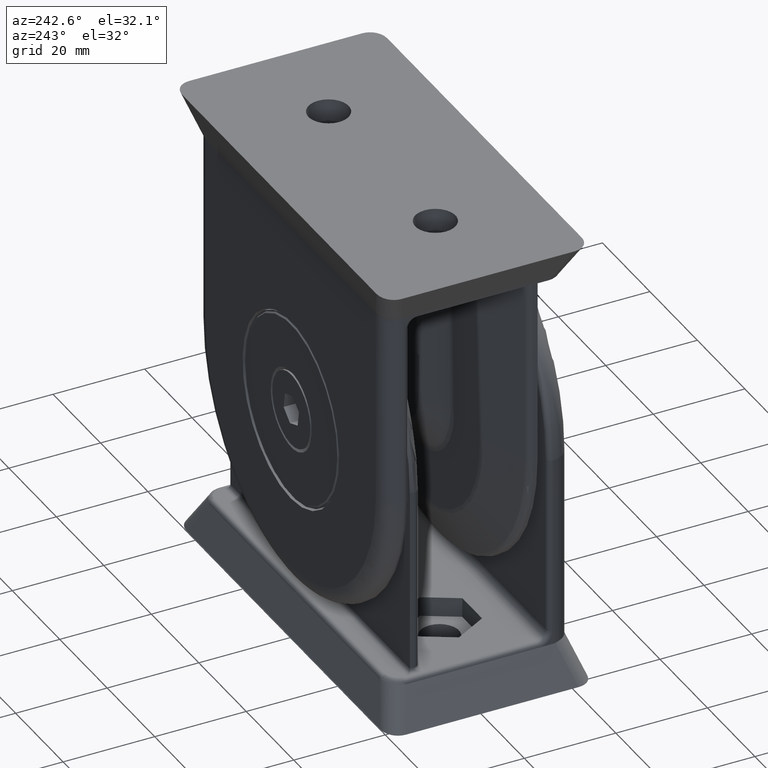
[diagram: clean part render]
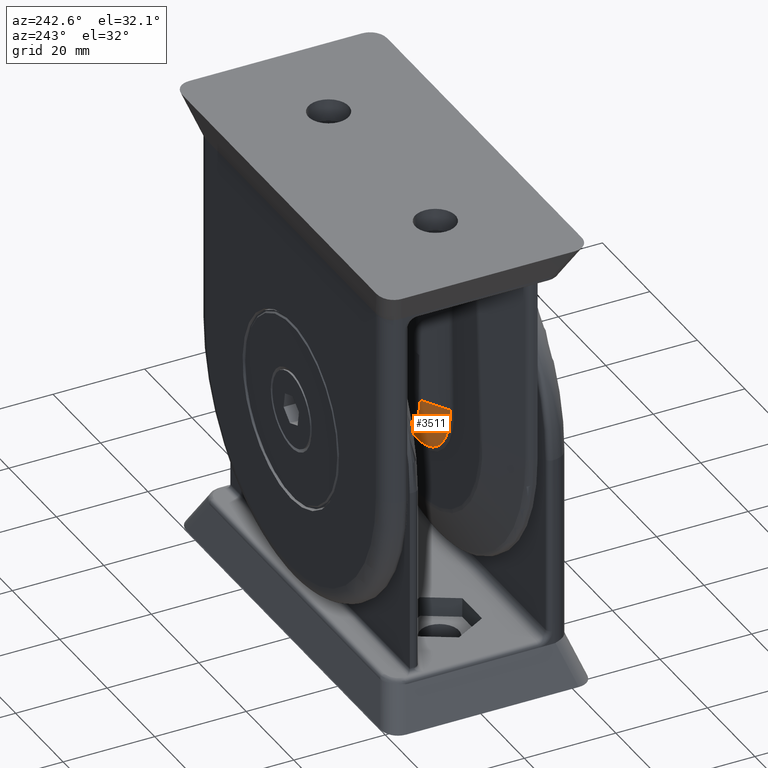
[diagram: same view with one face highlighted and labeled with its STEP entity id]
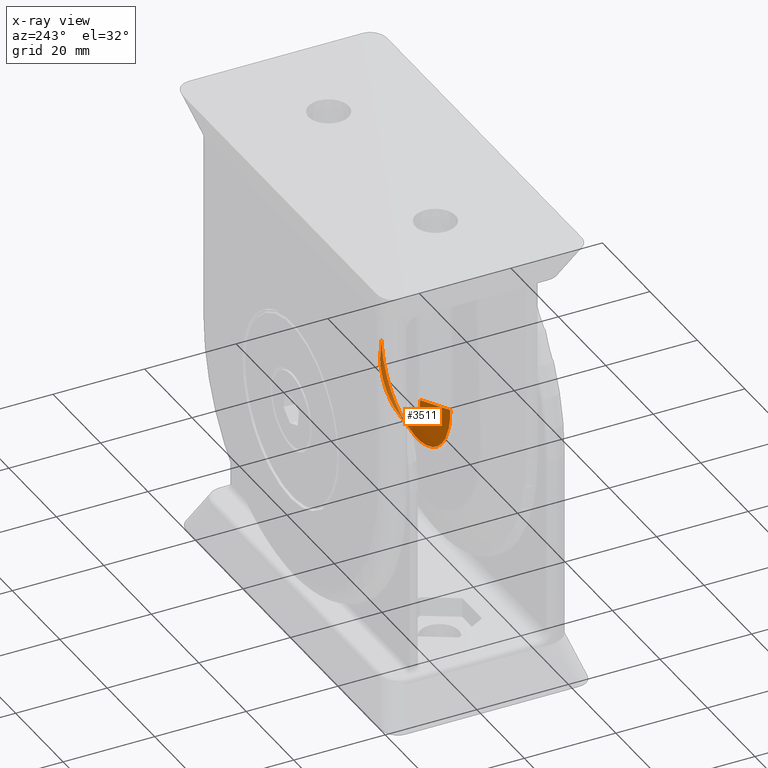
[diagram: x-ray of the same camera — body ghosted, the highlighted face saturated]
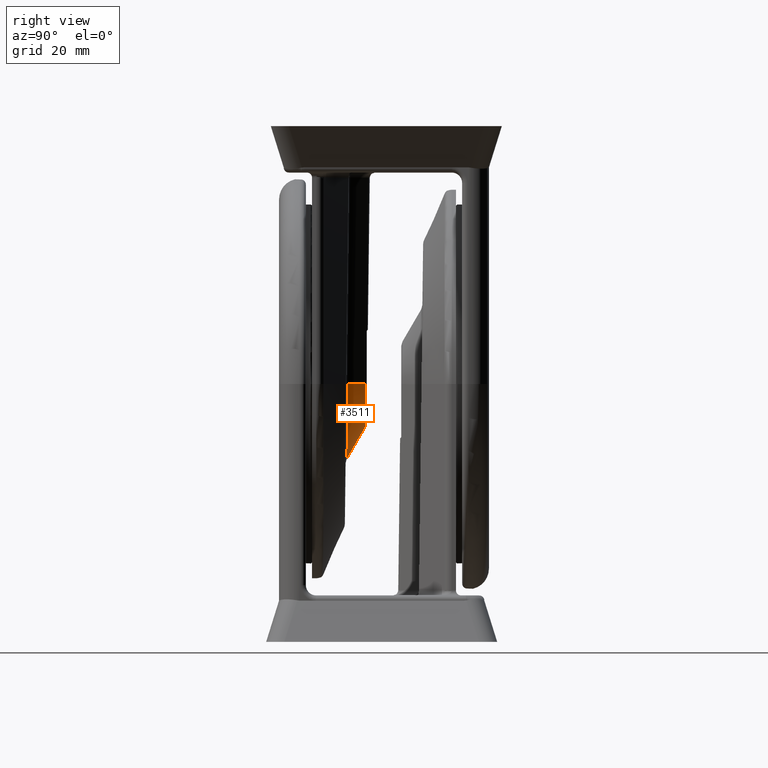
[diagram: same view with one face highlighted and labeled with its STEP entity id]
A machine part, auxiliary view. The second image highlights one B-rep face of the part: STEP entity #3511.
The next image is the same camera in x-ray: the body ghosted, the highlighted face saturated — about 20% of this face is hidden behind the body in this view.
A second angle (right view) of the same face is appended — the face is thin or edge-on in the first view.
In plain terms, the highlighted face is a freeform B-spline surface patch.
Its self-contained STEP definition (entity closure, byte-faithful):
#59=B_SPLINE_SURFACE_WITH_KNOTS('',1,3,((#8820,#8821,#8822,#8823,#8824,
#8825,#8826,#8827,#8828,#8829,#8830,#8831,#8832,#8833),(#8834,#8835,#8836,
#8837,#8838,#8839,#8840,#8841,#8842,#8843,#8844,#8845,#8846,#8847)),
 .UNSPECIFIED.,.F.,.F.,.F.,(2,2),(4,2,2,2,2,2,4),(0.,1.),(4.71237004003002,
5.49778714378214,5.89048622548086,6.28318530717959,6.67588438887831,7.06858347057703,
7.85400057432915),.UNSPECIFIED.);
#409=LINE('',#7977,#636);
#415=LINE('',#7989,#642);
#636=VECTOR('',#4673,1000.);
#642=VECTOR('',#4683,1000.);
#787=B_SPLINE_CURVE_WITH_KNOTS('',3,(#8338,#8339,#8340,#8341,#8342,#8343,
#8344,#8345,#8346,#8347,#8348,#8349,#8350,#8351,#8352,#8353,#8354,#8355,
#8356,#8357,#8358,#8359,#8360,#8361,#8362,#8363,#8364,#8365,#8366,#8367,
#8368,#8369,#8370,#8371,#8372,#8373,#8374,#8375,#8376,#8377,#8378,#8379,
#8380,#8381,#8382,#8383,#8384,#8385,#8386,#8387,#8388,#8389,#8390,#8391,
#8392,#8393,#8394,#8395,#8396,#8397,#8398,#8399,#8400,#8401,#8402,#8403,
#8404,#8405,#8406,#8407,#8408,#8409,#8410,#8411,#8412,#8413,#8414,#8415,
#8416,#8417,#8418,#8419,#8420,#8421,#8422,#8423,#8424,#8425,#8426,#8427,
#8428,#8429,#8430,#8431,#8432,#8433,#8434,#8435,#8436,#8437,#8438,#8439,
#8440,#8441,#8442,#8443,#8444,#8445,#8446,#8447,#8448,#8449,#8450,#8451,
#8452,#8453,#8454,#8455,#8456,#8457,#8458,#8459,#8460,#8461,#8462,#8463,
#8464,#8465,#8466,#8467,#8468,#8469,#8470,#8471,#8472,#8473,#8474,#8475,
#8476,#8477,#8478,#8479,#8480,#8481,#8482,#8483,#8484,#8485,#8486,#8487,
#8488,#8489,#8490,#8491,#8492,#8493,#8494,#8495,#8496,#8497,#8498,#8499,
#8500,#8501,#8502,#8503,#8504,#8505,#8506,#8507,#8508,#8509,#8510,#8511,
#8512,#8513,#8514,#8515,#8516,#8517,#8518,#8519,#8520,#8521,#8522,#8523,
#8524,#8525,#8526,#8527,#8528,#8529,#8530,#8531,#8532,#8533,#8534,#8535,
#8536,#8537,#8538,#8539,#8540,#8541,#8542,#8543,#8544,#8545,#8546,#8547,
#8548,#8549,#8550,#8551,#8552,#8553,#8554,#8555,#8556,#8557,#8558,#8559,
#8560,#8561,#8562,#8563,#8564,#8565,#8566,#8567,#8568,#8569,#8570,#8571,
#8572,#8573,#8574,#8575,#8576,#8577,#8578,#8579,#8580,#8581,#8582,#8583,
#8584,#8585,#8586,#8587,#8588,#8589,#8590,#8591,#8592,#8593,#8594,#8595,
#8596,#8597,#8598,#8599,#8600,#8601,#8602,#8603,#8604,#8605,#8606,#8607,
#8608,#8609,#8610,#8611,#8612,#8613,#8614,#8615,#8616,#8617,#8618,#8619,
#8620,#8621,#8622,#8623,#8624,#8625,#8626,#8627,#8628,#8629,#8630,#8631,
#8632,#8633,#8634,#8635,#8636,#8637,#8638,#8639,#8640,#8641,#8642,#8643,
#8644,#8645,#8646,#8647,#8648,#8649,#8650,#8651,#8652,#8653,#8654,#8655,
#8656,#8657,#8658,#8659,#8660,#8661,#8662,#8663,#8664,#8665,#8666,#8667,
#8668,#8669,#8670,#8671,#8672,#8673,#8674,#8675,#8676,#8677,#8678,#8679,
#8680,#8681,#8682,#8683,#8684,#8685,#8686,#8687,#8688,#8689,#8690,#8691,
#8692,#8693,#8694,#8695,#8696,#8697,#8698,#8699,#8700,#8701,#8702,#8703,
#8704,#8705,#8706,#8707),.UNSPECIFIED.,.F.,.F.,(4,3,3,3,3,3,3,3,3,3,3,3,
3,3,3,3,3,3,3,3,3,3,3,3,3,3,3,3,3,3,3,3,3,3,3,3,3,3,3,3,3,3,3,3,3,3,3,3,
3,3,3,3,3,3,3,3,3,3,3,3,3,3,3,3,3,3,3,3,3,3,3,3,3,3,3,3,3,3,3,3,3,3,3,3,
3,3,3,3,3,3,3,3,3,3,3,3,3,3,3,3,3,3,3,3,3,3,3,3,3,3,3,3,3,3,3,3,3,3,3,3,
3,3,3,4),(5.42097291109042E-10,0.00954896994279413,0.0191183252899419,0.0287304954259754,
0.0312500000000078,0.0410259933870681,0.0508824691544094,0.0608737051166917,
0.0625000000000156,0.0734496552068592,0.0850747554279119,0.0921453258643062,
0.0937500000000235,0.101562500000025,0.10913582981343,0.11651132077613,
0.12363235089266,0.125000000000031,0.131966068907395,0.138774540700722,
0.139883745057896,0.149826633146751,0.156250000000039,0.16015625000004,
0.162109375000041,0.163085937500041,0.163330078125041,0.163574218750041,
0.164062500000042,0.17187500000005,0.187447057356182,0.187500000000066,
0.205155536419287,0.218826996675658,0.236987963241624,0.25000000000013,
0.250020403094265,0.265760848228447,0.281134654458257,0.281250000000162,
0.285644531250166,0.286132812500166,0.287109375000166,0.289062500000166,
0.296875000000167,0.310245555124806,0.312500000000168,0.320708584764888,
0.338502696541265,0.356751348270719,0.375000000000172,0.389972557909021,
0.408782522897686,0.42027189513463,0.430138312915277,0.437500000000176,
0.446594818154925,0.448592474745418,0.464753970541198,0.468750000000179,
0.482857458687457,0.495465573034227,0.499755859375181,0.500000000000181,
0.500002863496706,0.512690828706623,0.524651830990226,0.536091004583969,
0.550575652838875,0.562500000000185,0.569916760324849,0.587780989213046,
0.605172328190055,0.622028740176125,0.625000000000189,0.632215944717329,
0.644196474738556,0.655789311251439,0.661389832434533,0.677391358811987,
0.687500000000193,0.689266198107162,0.695312500000193,0.699218750000193,
0.699845761339445,0.700195312500193,0.701171875000193,0.703125000000192,
0.712458367892607,0.718655814365338,0.724389638906659,0.733969423966589,
0.740014326285745,0.748276650795757,0.752839042758139,0.760201387549859,
0.767300579762741,0.774051160103665,0.777277378004016,0.781752524302006,
0.792399824520299,0.803690868946882,0.810558729465477,0.819561596551946,
0.826691656839174,0.836531762004386,0.841451814586992,0.843246680370798,
0.844496521916532,0.846371867169598,0.848161125471501,0.848999840300518,
0.849406092795823,0.849606045195856,0.849641759803486,0.850037982306557,
0.850093176554269,0.850111399939917,0.875000000000046,0.875144793806973,
0.918401965535154,0.937510562658965,0.968737729649475,0.999999999859927),
 .UNSPECIFIED.);
#788=B_SPLINE_CURVE_WITH_KNOTS('',3,(#8848,#8849,#8850,#8851,#8852,#8853,
#8854,#8855,#8856,#8857,#8858,#8859,#8860,#8861,#8862,#8863,#8864,#8865,
#8866,#8867,#8868,#8869,#8870,#8871,#8872,#8873,#8874,#8875,#8876,#8877,
#8878,#8879,#8880,#8881,#8882,#8883,#8884,#8885,#8886,#8887,#8888,#8889,
#8890,#8891,#8892,#8893,#8894,#8895,#8896,#8897,#8898,#8899,#8900,#8901,
#8902,#8903,#8904,#8905,#8906,#8907,#8908,#8909,#8910,#8911,#8912,#8913,
#8914,#8915,#8916,#8917,#8918,#8919,#8920,#8921,#8922,#8923,#8924,#8925,
#8926,#8927,#8928,#8929,#8930,#8931,#8932,#8933,#8934,#8935,#8936,#8937,
#8938,#8939,#8940,#8941,#8942,#8943,#8944,#8945,#8946,#8947,#8948,#8949,
#8950,#8951,#8952,#8953,#8954,#8955,#8956,#8957,#8958,#8959,#8960,#8961,
#8962,#8963,#8964,#8965,#8966,#8967,#8968,#8969,#8970,#8971,#8972,#8973,
#8974,#8975,#8976,#8977,#8978,#8979,#8980,#8981,#8982,#8983,#8984,#8985,
#8986,#8987,#8988,#8989,#8990,#8991,#8992,#8993,#8994,#8995,#8996,#8997,
#8998,#8999,#9000,#9001,#9002,#9003,#9004,#9005,#9006,#9007,#9008,#9009,
#9010,#9011,#9012,#9013,#9014,#9015,#9016,#9017,#9018,#9019,#9020,#9021,
#9022,#9023,#9024,#9025,#9026,#9027,#9028,#9029,#9030,#9031,#9032,#9033,
#9034,#9035,#9036,#9037,#9038,#9039,#9040,#9041,#9042,#9043,#9044,#9045,
#9046,#9047,#9048,#9049,#9050,#9051,#9052,#9053,#9054,#9055,#9056,#9057,
#9058,#9059,#9060,#9061,#9062,#9063,#9064,#9065,#9066,#9067,#9068,#9069,
#9070,#9071,#9072,#9073,#9074,#9075,#9076,#9077,#9078,#9079,#9080,#9081,
#9082,#9083,#9084,#9085,#9086,#9087,#9088,#9089,#9090,#9091,#9092,#9093,
#9094,#9095,#9096,#9097,#9098,#9099,#9100,#9101,#9102,#9103,#9104,#9105,
#9106,#9107,#9108,#9109,#9110,#9111,#9112,#9113,#9114,#9115,#9116,#9117,
#9118,#9119,#9120,#9121,#9122,#9123,#9124,#9125,#9126,#9127),
 .UNSPECIFIED.,.F.,.F.,(4,3,3,3,3,3,3,3,3,3,3,3,3,3,3,3,3,3,3,3,3,3,3,3,
3,3,3,3,3,3,3,3,3,3,3,3,3,3,3,3,3,3,3,3,3,3,3,3,3,3,3,3,3,3,3,3,3,3,3,3,
3,3,3,3,3,3,3,3,3,3,3,3,3,3,3,3,3,3,3,3,3,3,3,3,3,3,3,3,3,3,3,3,3,4),(0.,
0.000817771045886731,0.00127606208184537,0.00681080453598875,0.0133649709557931,
0.0185830910394423,0.0257334653684699,0.0330425637379707,0.0405659319437386,
0.0445037009295149,0.0522442896625111,0.0599878339535302,0.0624999999999798,
0.0788008765604321,0.0954132703566711,0.0999565863859451,0.110884915743352,
0.122109678245604,0.12499999999996,0.130637927680746,0.152772095201965,
0.16393075043064,0.183792925848885,0.187499999999939,0.200912377872544,
0.211231158404388,0.218181737716853,0.223745355660836,0.242187499999921,
0.243618176793225,0.246093749999919,0.248046874999918,0.249511718749918,
0.249999999999918,0.278470561213601,0.305902920097007,0.330332662894114,
0.336427530583976,0.353738787739857,0.367417866044177,0.374999999999941,
0.403018313411595,0.431036626823248,0.449449679917483,0.463664714067078,
0.491426283584106,0.496812657487763,0.499999999999964,0.525613259703707,
0.550995720645716,0.562830748598404,0.581681464011894,0.595041479589541,
0.619655274635141,0.624999999999986,0.626657802960294,0.648229544889377,
0.657827681718853,0.674649304761819,0.687499999999998,0.688610100260252,
0.705653845031061,0.718750000000004,0.734375000000007,0.742187500000008,
0.746093750000009,0.748046875000009,0.748378553892955,0.749189276946482,
0.749391957709864,0.749485453073402,0.74953835629045,0.750000000000009,
0.765625000000008,0.780507121696878,0.794907890506182,0.808683128823868,
0.812500000000007,0.826505917910623,0.848946548453888,0.870055891605757,
0.875000000000004,0.890265306906451,0.891525667469226,0.903004816444982,
0.913920834411427,0.920965347656796,0.935352733875331,0.937500000000002,
0.948600678855832,0.965581828151439,0.981709700226807,0.996963331983567,
1.),.UNSPECIFIED.);
#918=FACE_OUTER_BOUND('',#1144,.T.);
#1144=EDGE_LOOP('',(#2846,#2847,#2848,#2849));
#1664=VERTEX_POINT('',#7974);
#1665=VERTEX_POINT('',#7976);
#1668=VERTEX_POINT('',#7986);
#1669=VERTEX_POINT('',#7988);
#2070=EDGE_CURVE('',#1665,#1664,#409,.T.);
#2076=EDGE_CURVE('',#1669,#1668,#415,.T.);
#2099=EDGE_CURVE('',#1664,#1669,#787,.T.);
#2105=EDGE_CURVE('',#1668,#1665,#788,.T.);
#2846=ORIENTED_EDGE('',*,*,#2076,.T.);
#2847=ORIENTED_EDGE('',*,*,#2105,.T.);
#2848=ORIENTED_EDGE('',*,*,#2070,.T.);
#2849=ORIENTED_EDGE('',*,*,#2099,.T.);
#3511=ADVANCED_FACE('',(#918),#59,.T.);
#4673=DIRECTION('',(0.866025403784442,-0.499961900407605,0.00617236914083566));
#4683=DIRECTION('',(0.866025403784441,0.499961900407605,-0.00617236914083535));
#7974=CARTESIAN_POINT('',(14.4641005527015,-7.43763383453731,-40.9539288180225));
#7976=CARTESIAN_POINT('',(8.46468601670577,-3.97413417315168,-40.9966880720088));
#7977=CARTESIAN_POINT('',(8.46468601714481,-3.97413417340725,-40.9966880721745));
#7986=CARTESIAN_POINT('',(-8.46462950421845,-3.97410162585648,-40.9966885929098));
#7988=CARTESIAN_POINT('',(-14.4641005527016,-7.43763383453751,-40.9539288180341));
#7989=CARTESIAN_POINT('',(-14.4641016151378,-7.43763444787981,-40.9539288095267));
#8338=CARTESIAN_POINT('Ctrl Pts',(14.4640994913174,-7.4376332218493,-40.9539288310167));
#8339=CARTESIAN_POINT('Ctrl Pts',(14.4642740084848,-7.43812200726927,-40.9912304466496));
#8340=CARTESIAN_POINT('Ctrl Pts',(14.4643302509988,-7.43869314989712,-41.0348251985095));
#8341=CARTESIAN_POINT('Ctrl Pts',(14.4640879576037,-7.43934622601069,-41.0847078297287));
#8342=CARTESIAN_POINT('Ctrl Pts',(14.4638451469401,-7.44000069636631,-41.1346969546025));
#8343=CARTESIAN_POINT('Ctrl Pts',(14.4633025051598,-7.44073744889877,-41.191000840352));
#8344=CARTESIAN_POINT('Ctrl Pts',(14.4622266298957,-7.4415559102268,-41.2536074338567));
#8345=CARTESIAN_POINT('Ctrl Pts',(14.4611459409978,-7.44237803347851,-41.3164941390289));
#8346=CARTESIAN_POINT('Ctrl Pts',(14.4595272177989,-7.44328259635071,-41.3857400841455));
#8347=CARTESIAN_POINT('Ctrl Pts',(14.4570817695151,-7.44426889577035,-41.4613261396374));
#8348=CARTESIAN_POINT('Ctrl Pts',(14.4564407781417,-7.44452742073027,-41.4811384619174));
#8349=CARTESIAN_POINT('Ctrl Pts',(14.4557427108524,-7.44479156083256,-41.5013863434899));
#8350=CARTESIAN_POINT('Ctrl Pts',(14.4549817833539,-7.44506130232221,-41.5220693608222));
#8351=CARTESIAN_POINT('Ctrl Pts',(14.452029289332,-7.44610793309483,-41.6023220592093));
#8352=CARTESIAN_POINT('Ctrl Pts',(14.4481341422189,-7.44723901967788,-41.6891356759249));
#8353=CARTESIAN_POINT('Ctrl Pts',(14.4429253877932,-7.44845348867452,-41.7824607215741));
#8354=CARTESIAN_POINT('Ctrl Pts',(14.4376737514896,-7.44967795597534,-41.8765540801218));
#8355=CARTESIAN_POINT('Ctrl Pts',(14.4310867093729,-7.45098718070904,-41.9772665280403));
#8356=CARTESIAN_POINT('Ctrl Pts',(14.4227314035273,-7.45238003188037,-42.0845398925742));
#8357=CARTESIAN_POINT('Ctrl Pts',(14.4142618618564,-7.45379192646029,-42.1932799253025));
#8358=CARTESIAN_POINT('Ctrl Pts',(14.403975308184,-7.4552897454121,-42.3087615190877));
#8359=CARTESIAN_POINT('Ctrl Pts',(14.3913680272395,-7.45687233958519,-42.4309162996878));
#8360=CARTESIAN_POINT('Ctrl Pts',(14.3893159131097,-7.45712994182938,-42.4507996950368));
#8361=CARTESIAN_POINT('Ctrl Pts',(14.3872022010852,-7.45738979032186,-42.4708598781842));
#8362=CARTESIAN_POINT('Ctrl Pts',(14.3850245908817,-7.45765188030921,-42.491096534745));
#8363=CARTESIAN_POINT('Ctrl Pts',(14.3703629934382,-7.45941650185726,-42.6273476009889));
#8364=CARTESIAN_POINT('Ctrl Pts',(14.3528049357408,-7.4612832209589,-42.7716383792673));
#8365=CARTESIAN_POINT('Ctrl Pts',(14.3316282165911,-7.46325059852099,-42.9237417074633));
#8366=CARTESIAN_POINT('Ctrl Pts',(14.3091451814801,-7.46533933655885,-43.0852277452272));
#8367=CARTESIAN_POINT('Ctrl Pts',(14.2825830724811,-7.46754151996045,-43.2555199523657));
#8368=CARTESIAN_POINT('Ctrl Pts',(14.2510181388657,-7.46985583197048,-43.4343363076541));
#8369=CARTESIAN_POINT('Ctrl Pts',(14.231819845328,-7.47126343326145,-43.5430952526271));
#8370=CARTESIAN_POINT('Ctrl Pts',(14.2107697339572,-7.47271252268822,-43.6550073069814));
#8371=CARTESIAN_POINT('Ctrl Pts',(14.1876508796074,-7.47420290742589,-43.7700072843017));
#8372=CARTESIAN_POINT('Ctrl Pts',(14.182404028882,-7.47454115196532,-43.7961066621205));
#8373=CARTESIAN_POINT('Ctrl Pts',(14.1770472131559,-7.47488159370567,-43.8223705033364));
#8374=CARTESIAN_POINT('Ctrl Pts',(14.1715779046583,-7.47522421882144,-43.8487972742152));
#8375=CARTESIAN_POINT('Ctrl Pts',(14.1449500855353,-7.47689231993765,-43.9774583792305));
#8376=CARTESIAN_POINT('Ctrl Pts',(14.11570268476,-7.47861844512954,-44.1098343620528));
#8377=CARTESIAN_POINT('Ctrl Pts',(14.0835118007211,-7.48039529897646,-44.245847547067));
#8378=CARTESIAN_POINT('Ctrl Pts',(14.0523064014492,-7.48211775660373,-44.3776968538297));
#8379=CARTESIAN_POINT('Ctrl Pts',(14.0183348193014,-7.48388788721754,-44.5129643426125));
#8380=CARTESIAN_POINT('Ctrl Pts',(13.9812907215568,-7.48569854444684,-44.6515333026426));
#8381=CARTESIAN_POINT('Ctrl Pts',(13.9452143304755,-7.4874619016966,-44.7864824118975));
#8382=CARTESIAN_POINT('Ctrl Pts',(13.906223707442,-7.48926369893078,-44.9245630318811));
#8383=CARTESIAN_POINT('Ctrl Pts',(13.8640272750838,-7.49109680994793,-45.0656191033037));
#8384=CARTESIAN_POINT('Ctrl Pts',(13.8232866563029,-7.49286667704235,-45.2018086177102));
#8385=CARTESIAN_POINT('Ctrl Pts',(13.7795574748365,-7.49466573653095,-45.3407719839731));
#8386=CARTESIAN_POINT('Ctrl Pts',(13.7325712649612,-7.49648704265095,-45.482320062592));
#8387=CARTESIAN_POINT('Ctrl Pts',(13.7235471986473,-7.49683683862829,-45.509505469788));
#8388=CARTESIAN_POINT('Ctrl Pts',(13.7144029781976,-7.4971874535186,-45.5367860638739));
#8389=CARTESIAN_POINT('Ctrl Pts',(13.7051366819029,-7.4975388356598,-45.5641602811117));
#8390=CARTESIAN_POINT('Ctrl Pts',(13.6579391528316,-7.49932858728194,-45.703589819387));
#8391=CARTESIAN_POINT('Ctrl Pts',(13.6075264300793,-7.50115098605412,-45.8456480529445));
#8392=CARTESIAN_POINT('Ctrl Pts',(13.5536704459747,-7.50300295063989,-45.9900033438184));
#8393=CARTESIAN_POINT('Ctrl Pts',(13.501032874691,-7.5048130172373,-46.1310928075034));
#8394=CARTESIAN_POINT('Ctrl Pts',(13.4451059687008,-7.50665132798026,-46.2743766570718));
#8395=CARTESIAN_POINT('Ctrl Pts',(13.3856845400775,-7.50851444938649,-46.4194957027928));
#8396=CARTESIAN_POINT('Ctrl Pts',(13.3760038790511,-7.50881798040556,-46.4431378184847));
#8397=CARTESIAN_POINT('Ctrl Pts',(13.366230487554,-7.50912216869195,-46.466828532199));
#8398=CARTESIAN_POINT('Ctrl Pts',(13.3563635014201,-7.50942699793001,-46.4905661599362));
#8399=CARTESIAN_POINT('Ctrl Pts',(13.2679160135701,-7.5121594817872,-46.7033498319074));
#8400=CARTESIAN_POINT('Ctrl Pts',(13.1719451996579,-7.5149491878877,-46.9203517007517));
#8401=CARTESIAN_POINT('Ctrl Pts',(13.0675633574751,-7.51779096031495,-47.1409873223253));
#8402=CARTESIAN_POINT('Ctrl Pts',(13.0001299458576,-7.51962681994152,-47.2835237288105));
#8403=CARTESIAN_POINT('Ctrl Pts',(12.9291852821639,-7.52148439933641,-47.4275761083012));
#8404=CARTESIAN_POINT('Ctrl Pts',(12.8544803339096,-7.52336219367966,-47.5729806093061));
#8405=CARTESIAN_POINT('Ctrl Pts',(12.8090499216689,-7.52450413906763,-47.661405627684));
#8406=CARTESIAN_POINT('Ctrl Pts',(12.7622429714206,-7.52565472663966,-47.7503081821357));
#8407=CARTESIAN_POINT('Ctrl Pts',(12.7140111836279,-7.52681365989517,-47.8396386792926));
#8408=CARTESIAN_POINT('Ctrl Pts',(12.6898952897316,-7.52739312652292,-47.8843039278711));
#8409=CARTESIAN_POINT('Ctrl Pts',(12.6654231868627,-7.52797467930944,-47.929076161815));
#8410=CARTESIAN_POINT('Ctrl Pts',(12.6405888733799,-7.52855819500836,-47.9739488560339));
#8411=CARTESIAN_POINT('Ctrl Pts',(12.6281717166385,-7.52884995285781,-47.9963852031434));
#8412=CARTESIAN_POINT('Ctrl Pts',(12.6156640073163,-7.5291422012905,-48.0188466653727));
#8413=CARTESIAN_POINT('Ctrl Pts',(12.6030649970029,-7.52943492145408,-48.0413324167752));
#8414=CARTESIAN_POINT('Ctrl Pts',(12.5999152444246,-7.52950810149497,-48.0469538546258));
#8415=CARTESIAN_POINT('Ctrl Pts',(12.5964828474427,-7.52958770973551,-48.0530680871723));
#8416=CARTESIAN_POINT('Ctrl Pts',(12.5946740073243,-7.52962963075302,-48.0562875556276));
#8417=CARTESIAN_POINT('Ctrl Pts',(12.5928651672059,-7.52967155177053,-48.0595070240829));
#8418=CARTESIAN_POINT('Ctrl Pts',(12.5910551137744,-7.52971346721528,-48.0627258121096));
#8419=CARTESIAN_POINT('Ctrl Pts',(12.589243847495,-7.5297553770363,-48.0659439187533));
#8420=CARTESIAN_POINT('Ctrl Pts',(12.5856213149363,-7.52983919667835,-48.0723801320407));
#8421=CARTESIAN_POINT('Ctrl Pts',(12.5819939309858,-7.52992299382681,-48.0788136197954));
#8422=CARTESIAN_POINT('Ctrl Pts',(12.5783616993737,-7.53000676805855,-48.0852443743873));
#8423=CARTESIAN_POINT('Ctrl Pts',(12.52024599358,-7.5313471557663,-48.1881364478572));
#8424=CARTESIAN_POINT('Ctrl Pts',(12.4608892346713,-7.53268178960021,-48.2903287899943));
#8425=CARTESIAN_POINT('Ctrl Pts',(12.4003070491791,-7.53400821788828,-48.3917904031022));
#8426=CARTESIAN_POINT('Ctrl Pts',(12.2795532229719,-7.53665208571298,-48.5940260586235));
#8427=CARTESIAN_POINT('Ctrl Pts',(12.1539292480664,-7.53926425832225,-48.7933583966664));
#8428=CARTESIAN_POINT('Ctrl Pts',(12.023584343,-7.54182145395438,-48.9895577481402));
#8429=CARTESIAN_POINT('Ctrl Pts',(12.0231411900027,-7.54183014803343,-48.9902247963124));
#8430=CARTESIAN_POINT('Ctrl Pts',(12.0226979798888,-7.54183884148582,-48.9908918092485));
#8431=CARTESIAN_POINT('Ctrl Pts',(12.0222547126976,-7.54184753431003,-48.9915587868972));
#8432=CARTESIAN_POINT('Ctrl Pts',(11.8744320982088,-7.54474645403123,-49.2139853093221));
#8433=CARTESIAN_POINT('Ctrl Pts',(11.7197743050686,-7.54760907870928,-49.4333000644373));
#8434=CARTESIAN_POINT('Ctrl Pts',(11.5593105322162,-7.55041309402898,-49.6480112363728));
#8435=CARTESIAN_POINT('Ctrl Pts',(11.4350563582818,-7.55258436671599,-49.8142715631063));
#8436=CARTESIAN_POINT('Ctrl Pts',(11.3073200036804,-7.55472049326284,-49.9777712412455));
#8437=CARTESIAN_POINT('Ctrl Pts',(11.1765715342377,-7.55681083767616,-50.1377972844853));
#8438=CARTESIAN_POINT('Ctrl Pts',(11.0028871919969,-7.55958762042576,-50.3503735248036));
#8439=CARTESIAN_POINT('Ctrl Pts',(10.8236016876438,-7.56229120389849,-50.5574040414202));
#8440=CARTESIAN_POINT('Ctrl Pts',(10.6382164480858,-7.56492214794154,-50.7592441098196));
#8441=CARTESIAN_POINT('Ctrl Pts',(10.5053909432949,-7.56680717649844,-50.9038592314769));
#8442=CARTESIAN_POINT('Ctrl Pts',(10.3694333424381,-7.56865490539105,-51.0458091660939));
#8443=CARTESIAN_POINT('Ctrl Pts',(10.2301464377491,-7.5704653824914,-51.1852156054984));
#8444=CARTESIAN_POINT('Ctrl Pts',(10.2299280335222,-7.57046822135017,-51.1854341971577));
#8445=CARTESIAN_POINT('Ctrl Pts',(10.22970962193,-7.57047106010663,-51.1856527817385));
#8446=CARTESIAN_POINT('Ctrl Pts',(10.2294912029724,-7.57047389876078,-51.1858713592407));
#8447=CARTESIAN_POINT('Ctrl Pts',(10.0609867792791,-7.57266384502599,-51.354498095838));
#8448=CARTESIAN_POINT('Ctrl Pts',(9.88831710378889,-7.57479644231684,-51.5188653132705));
#8449=CARTESIAN_POINT('Ctrl Pts',(9.71170222511897,-7.57687058072881,-51.6788019729259));
#8450=CARTESIAN_POINT('Ctrl Pts',(9.5392011999684,-7.5788964066675,-51.8350132613377));
#8451=CARTESIAN_POINT('Ctrl Pts',(9.36293678309017,-7.5808664685754,-51.986998125197));
#8452=CARTESIAN_POINT('Ctrl Pts',(9.18314768546686,-7.5827801677133,-52.1346314115793));
#8453=CARTESIAN_POINT('Ctrl Pts',(9.1817987761217,-7.58279452568431,-52.1357390645032));
#8454=CARTESIAN_POINT('Ctrl Pts',(9.18044965042133,-7.58280888064052,-52.1368464846394));
#8455=CARTESIAN_POINT('Ctrl Pts',(9.17910030866289,-7.58282323257926,-52.1379536717686));
#8456=CARTESIAN_POINT('Ctrl Pts',(9.12769195402317,-7.58337002478515,-52.180136216133));
#8457=CARTESIAN_POINT('Ctrl Pts',(9.07599354459935,-7.58391218721469,-52.2219612667966));
#8458=CARTESIAN_POINT('Ctrl Pts',(9.0240115423924,-7.58445014322915,-52.2634271831846));
#8459=CARTESIAN_POINT('Ctrl Pts',(9.01823576436941,-7.58450991611964,-52.2680345072277));
#8460=CARTESIAN_POINT('Ctrl Pts',(9.01499148747988,-7.58454381190609,-52.2706186634473));
#8461=CARTESIAN_POINT('Ctrl Pts',(9.01081933426607,-7.58458737388825,-52.2739398907672));
#8462=CARTESIAN_POINT('Ctrl Pts',(9.00247502783847,-7.58467449785257,-52.2805823454069));
#8463=CARTESIAN_POINT('Ctrl Pts',(8.99410867025652,-7.58476165254387,-52.2872272772425));
#8464=CARTESIAN_POINT('Ctrl Pts',(8.98572020649876,-7.58484883432818,-52.2938745738835));
#8465=CARTESIAN_POINT('Ctrl Pts',(8.96894327898321,-7.58502319789682,-52.3071691671653));
#8466=CARTESIAN_POINT('Ctrl Pts',(8.95207792686478,-7.58519766957236,-52.3204732197852));
#8467=CARTESIAN_POINT('Ctrl Pts',(8.93512370989438,-7.58537222372474,-52.3337858310892));
#8468=CARTESIAN_POINT('Ctrl Pts',(8.86730684201279,-7.58607044033425,-52.3870362763051));
#8469=CARTESIAN_POINT('Ctrl Pts',(8.79806817006762,-7.58676988371947,-52.4404237027136));
#8470=CARTESIAN_POINT('Ctrl Pts',(8.72737928971913,-7.58746945295514,-52.4938897342053));
#8471=CARTESIAN_POINT('Ctrl Pts',(8.60640014458015,-7.58866671747087,-52.5853931609388));
#8472=CARTESIAN_POINT('Ctrl Pts',(8.48117426163725,-7.58986329454426,-52.6771258213713));
#8473=CARTESIAN_POINT('Ctrl Pts',(8.35156515657392,-7.59105675754113,-52.7687723683853));
#8474=CARTESIAN_POINT('Ctrl Pts',(8.32971142051087,-7.59125799051254,-52.7842251365266));
#8475=CARTESIAN_POINT('Ctrl Pts',(8.30773311106747,-7.59145913355926,-52.7996753442825));
#8476=CARTESIAN_POINT('Ctrl Pts',(8.28562962780026,-7.59166017332665,-52.8151213410347));
#8477=CARTESIAN_POINT('Ctrl Pts',(8.20514936501922,-7.59239217258276,-52.8713612495824));
#8478=CARTESIAN_POINT('Ctrl Pts',(8.12289064736432,-7.59312298743349,-52.927626953138));
#8479=CARTESIAN_POINT('Ctrl Pts',(8.03883308801678,-7.59385187647917,-52.9838193810223));
#8480=CARTESIAN_POINT('Ctrl Pts',(7.8566178037076,-7.59543192145928,-53.1056301890263));
#8481=CARTESIAN_POINT('Ctrl Pts',(7.66678398611029,-7.59699722558916,-53.2266358000517));
#8482=CARTESIAN_POINT('Ctrl Pts',(7.46893991896607,-7.59854211231449,-53.3460354333323));
#8483=CARTESIAN_POINT('Ctrl Pts',(7.26604204334147,-7.60012646224812,-53.4684850589021));
#8484=CARTESIAN_POINT('Ctrl Pts',(7.05471949958167,-7.60168934425417,-53.5892458257299));
#8485=CARTESIAN_POINT('Ctrl Pts',(6.83452921675367,-7.60322371844305,-53.7074009931497));
#8486=CARTESIAN_POINT('Ctrl Pts',(6.61433893392567,-7.60475809263193,-53.8255561605694));
#8487=CARTESIAN_POINT('Ctrl Pts',(6.38528086403936,-7.60626396132109,-53.9411057214599));
#8488=CARTESIAN_POINT('Ctrl Pts',(6.14689180491375,-7.60773332243659,-54.0530793507661));
#8489=CARTESIAN_POINT('Ctrl Pts',(5.95129960196578,-7.60893889612593,-54.1449508859296));
#8490=CARTESIAN_POINT('Ctrl Pts',(5.74989234778991,-7.61010711240627,-54.2341746213172));
#8491=CARTESIAN_POINT('Ctrl Pts',(5.54249919428303,-7.61123066204297,-54.3202257460189));
#8492=CARTESIAN_POINT('Ctrl Pts',(5.28195199986892,-7.61264217298571,-54.4283314319497));
#8493=CARTESIAN_POINT('Ctrl Pts',(5.01180986127424,-7.61398159752236,-54.5313953922705));
#8494=CARTESIAN_POINT('Ctrl Pts',(4.73160200665211,-7.61523586582268,-54.628248810684));
#8495=CARTESIAN_POINT('Ctrl Pts',(4.56044739007473,-7.61600198927884,-54.6874081433698));
#8496=CARTESIAN_POINT('Ctrl Pts',(4.38553678744112,-7.61673634115136,-54.7442495010772));
#8497=CARTESIAN_POINT('Ctrl Pts',(4.20675778269555,-7.61743594685007,-54.7984984578194));
#8498=CARTESIAN_POINT('Ctrl Pts',(4.05323256696999,-7.61803672833428,-54.8450843687243));
#8499=CARTESIAN_POINT('Ctrl Pts',(3.89692234996763,-7.61861112228204,-54.8896984930425));
#8500=CARTESIAN_POINT('Ctrl Pts',(3.73816666811147,-7.61915603335744,-54.9320890162769));
#8501=CARTESIAN_POINT('Ctrl Pts',(3.61971337748886,-7.61956261099437,-54.9637181013567));
#8502=CARTESIAN_POINT('Ctrl Pts',(3.49989964231919,-7.61995277209723,-54.9941090195051));
#8503=CARTESIAN_POINT('Ctrl Pts',(3.37888490448361,-7.62032517868984,-55.0231526713549));
#8504=CARTESIAN_POINT('Ctrl Pts',(3.22938017520536,-7.62078525940237,-55.0590339481707));
#8505=CARTESIAN_POINT('Ctrl Pts',(3.07752485593219,-7.62121709295505,-55.0929777073254));
#8506=CARTESIAN_POINT('Ctrl Pts',(2.9237195749907,-7.62161966893469,-55.1247105002025));
#8507=CARTESIAN_POINT('Ctrl Pts',(2.88993658693119,-7.62170809385372,-55.1316805376179));
#8508=CARTESIAN_POINT('Ctrl Pts',(2.85605972118751,-7.62179510702786,-55.1385438864107));
#8509=CARTESIAN_POINT('Ctrl Pts',(2.82209355819573,-7.62188069740793,-55.145297615481));
#8510=CARTESIAN_POINT('Ctrl Pts',(2.54729958059068,-7.62257314303358,-55.1999368184823));
#8511=CARTESIAN_POINT('Ctrl Pts',(2.26579352213479,-7.62317761515904,-55.2477564746245));
#8512=CARTESIAN_POINT('Ctrl Pts',(1.97793467194604,-7.62369191770348,-55.2876450941412));
#8513=CARTESIAN_POINT('Ctrl Pts',(1.90675979680343,-7.62381908217789,-55.2975078012001));
#8514=CARTESIAN_POINT('Ctrl Pts',(1.83519657234918,-7.62394073552449,-55.3068858841675));
#8515=CARTESIAN_POINT('Ctrl Pts',(1.76325049390937,-7.62405684765992,-55.3157630426137));
#8516=CARTESIAN_POINT('Ctrl Pts',(1.50925428599344,-7.62446676634806,-55.3471026879607));
#8517=CARTESIAN_POINT('Ctrl Pts',(1.2505118556834,-7.62479582603886,-55.3721715468953));
#8518=CARTESIAN_POINT('Ctrl Pts',(0.987338059416363,-7.62503379548441,-55.3902624066645));
#8519=CARTESIAN_POINT('Ctrl Pts',(0.752134441956849,-7.62524647347602,-55.4064305652009));
#8520=CARTESIAN_POINT('Ctrl Pts',(0.513389800599601,-7.62538639032012,-55.4170250835769));
#8521=CARTESIAN_POINT('Ctrl Pts',(0.271372523145907,-7.62544660364447,-55.4215784919854));
#8522=CARTESIAN_POINT('Ctrl Pts',(0.189018937893066,-7.62546709302106,-55.4231279247842));
#8523=CARTESIAN_POINT('Ctrl Pts',(0.106286679487467,-7.62547835733188,-55.4239782229625));
#8524=CARTESIAN_POINT('Ctrl Pts',(0.023187039560951,-7.62548013589774,-55.4241121736728));
#8525=CARTESIAN_POINT('Ctrl Pts',(0.0184582181218624,-7.62548023710781,
-55.4241197961966));
#8526=CARTESIAN_POINT('Ctrl Pts',(0.0121066227155429,-7.62548032122087,
-55.4241261207041));
#8527=CARTESIAN_POINT('Ctrl Pts',(0.0089970086725154,-7.6254803474067,-55.4241280797013));
#8528=CARTESIAN_POINT('Ctrl Pts',(0.00896053637706407,-7.62548034771383,
-55.4241281026781));
#8529=CARTESIAN_POINT('Ctrl Pts',(0.00892406399552294,-7.62548034801913,
-55.4241281255169));
#8530=CARTESIAN_POINT('Ctrl Pts',(0.00888759152789118,-7.62548034832261,
-55.4241281482178));
#8531=CARTESIAN_POINT('Ctrl Pts',(-0.152719519349425,-7.62548169302116,
-55.4242287340593));
#8532=CARTESIAN_POINT('Ctrl Pts',(-0.316384986798459,-7.6254462258592,-55.4215612238919));
#8533=CARTESIAN_POINT('Ctrl Pts',(-0.481946552418412,-7.62537239613503,
-55.4159754970889));
#8534=CARTESIAN_POINT('Ctrl Pts',(-0.638022190370934,-7.62530279651959,
-55.4107098071267));
#8535=CARTESIAN_POINT('Ctrl Pts',(-0.795783163656461,-7.62519910155626,
-55.4028505262647));
#8536=CARTESIAN_POINT('Ctrl Pts',(-0.955056035338173,-7.62505972930277,
-55.3922474249218));
#8537=CARTESIAN_POINT('Ctrl Pts',(-1.10738022897525,-7.624926437513,-55.3821069104383));
#8538=CARTESIAN_POINT('Ctrl Pts',(-1.26108755536236,-7.62476051178301,-55.3694566515361));
#8539=CARTESIAN_POINT('Ctrl Pts',(-1.41598688360439,-7.62456033321966,-55.3541442682115));
#8540=CARTESIAN_POINT('Ctrl Pts',(-1.61212537788639,-7.6243068607066,-55.3347552376506));
#8541=CARTESIAN_POINT('Ctrl Pts',(-1.80998761796035,-7.6239994324268,-55.3111712104169));
#8542=CARTESIAN_POINT('Ctrl Pts',(-2.0097966862959,-7.62363418394596,-55.2830689667404));
#8543=CARTESIAN_POINT('Ctrl Pts',(-2.17428757726413,-7.62333349665214,-55.2599340653114));
#8544=CARTESIAN_POINT('Ctrl Pts',(-2.34009765200097,-7.62299361238317,-55.2337361840369));
#8545=CARTESIAN_POINT('Ctrl Pts',(-2.50734420247724,-7.62261206858084,-55.2042694411328));
#8546=CARTESIAN_POINT('Ctrl Pts',(-2.6113689816311,-7.62237475421076,-55.1859415807718));
#8547=CARTESIAN_POINT('Ctrl Pts',(-2.71585875044413,-7.62212104278411,-55.1663632641238));
#8548=CARTESIAN_POINT('Ctrl Pts',(-2.82077410399332,-7.62185064645566,-55.1455014276428));
#8549=CARTESIAN_POINT('Ctrl Pts',(-3.07347633618712,-7.62119936183939,-55.0952529895632));
#8550=CARTESIAN_POINT('Ctrl Pts',(-3.32866162480609,-7.62045251917459,-55.0376158922669));
#8551=CARTESIAN_POINT('Ctrl Pts',(-3.58573979181603,-7.61960255532457,-54.9719755690747));
#8552=CARTESIAN_POINT('Ctrl Pts',(-3.83601275764283,-7.61877509114873,-54.9080728325871));
#8553=CARTESIAN_POINT('Ctrl Pts',(-4.08807960681629,-7.61784988782936,-54.8365847320766));
#8554=CARTESIAN_POINT('Ctrl Pts',(-4.34140427291099,-7.61682041516054,-54.7569925401983));
#8555=CARTESIAN_POINT('Ctrl Pts',(-4.58693711794212,-7.6158226072599,-54.6798484641184));
#8556=CARTESIAN_POINT('Ctrl Pts',(-4.83365151457635,-7.61472684187145,-54.5950910376043));
#8557=CARTESIAN_POINT('Ctrl Pts',(-5.08106875428445,-7.61352766378404,-54.5022965300588));
#8558=CARTESIAN_POINT('Ctrl Pts',(-5.12468069879155,-7.61331628607946,-54.4859397518552));
#8559=CARTESIAN_POINT('Ctrl Pts',(-5.16831450708576,-7.61310169661875,-54.469333384078));
#8560=CARTESIAN_POINT('Ctrl Pts',(-5.21196759172104,-7.61288386730603,-54.452475273447));
#8561=CARTESIAN_POINT('Ctrl Pts',(-5.31798263722794,-7.61235485120798,-54.4115339887557));
#8562=CARTESIAN_POINT('Ctrl Pts',(-5.42421836088636,-7.61180516913635,-54.3690649915212));
#8563=CARTESIAN_POINT('Ctrl Pts',(-5.53067774469288,-7.61123410822982,-54.3250121727245));
#8564=CARTESIAN_POINT('Ctrl Pts',(-5.70743074014,-7.61028598395743,-54.2518719064389));
#8565=CARTESIAN_POINT('Ctrl Pts',(-5.88438134939203,-7.60928026009892,-54.1744716579138));
#8566=CARTESIAN_POINT('Ctrl Pts',(-6.0611248778373,-7.60821818002314,-54.0928298709407));
#8567=CARTESIAN_POINT('Ctrl Pts',(-6.23214893322931,-7.60719046917393,-54.0138300364325));
#8568=CARTESIAN_POINT('Ctrl Pts',(-6.40297918617911,-7.60610998880178,-53.9308586203349));
#8569=CARTESIAN_POINT('Ctrl Pts',(-6.57320145478966,-7.60497805354925,-53.8439427952282));
#8570=CARTESIAN_POINT('Ctrl Pts',(-6.6554361537892,-7.60443121349396,-53.8019535961987));
#8571=CARTESIAN_POINT('Ctrl Pts',(-6.73752822751182,-7.60387236752477,-53.7590439909833));
#8572=CARTESIAN_POINT('Ctrl Pts',(-6.81942669375944,-7.60330168222419,-53.715218087543));
#8573=CARTESIAN_POINT('Ctrl Pts',(-7.05342285681124,-7.6016711489949,-53.5900009288199));
#8574=CARTESIAN_POINT('Ctrl Pts',(-7.28645460653444,-7.59994075045762,-53.4570578283284));
#8575=CARTESIAN_POINT('Ctrl Pts',(-7.51839760362235,-7.59810535933448,-53.3158627582998));
#8576=CARTESIAN_POINT('Ctrl Pts',(-7.66492290866963,-7.59694588805242,-53.2266656238018));
#8577=CARTESIAN_POINT('Ctrl Pts',(-7.81101310750413,-7.59574450679036,-53.1341744486606));
#8578=CARTESIAN_POINT('Ctrl Pts',(-7.9566304388563,-7.59449982742081,-53.0382479933319));
#8579=CARTESIAN_POINT('Ctrl Pts',(-7.9820729340629,-7.59428235503205,-53.021487568201));
#8580=CARTESIAN_POINT('Ctrl Pts',(-8.0074943434591,-7.59406355905756,-53.0046265066525));
#8581=CARTESIAN_POINT('Ctrl Pts',(-8.03289383525522,-7.59384344294248,-52.9876646364957));
#8582=CARTESIAN_POINT('Ctrl Pts',(-8.11984500722334,-7.59308990998487,-52.9295983373451));
#8583=CARTESIAN_POINT('Ctrl Pts',(-8.20653927726113,-7.59232090570961,-52.8703505817148));
#8584=CARTESIAN_POINT('Ctrl Pts',(-8.29293900093556,-7.59153642440212,-52.8099079338787));
#8585=CARTESIAN_POINT('Ctrl Pts',(-8.34875806630381,-7.59102960549667,-52.7708585947477));
#8586=CARTESIAN_POINT('Ctrl Pts',(-8.40445425060914,-7.59051638402967,-52.7313106336938));
#8587=CARTESIAN_POINT('Ctrl Pts',(-8.46001741030553,-7.58999693483411,-52.6912612040813));
#8588=CARTESIAN_POINT('Ctrl Pts',(-8.46893612548615,-7.58991355549695,-52.684832673778));
#8589=CARTESIAN_POINT('Ctrl Pts',(-8.47958605717622,-7.58981372924056,-52.677135092687));
#8590=CARTESIAN_POINT('Ctrl Pts',(-8.48695149313503,-7.58974454926813,-52.6718004955378));
#8591=CARTESIAN_POINT('Ctrl Pts',(-8.49105763369045,-7.58970598227875,-52.6688265228057));
#8592=CARTESIAN_POINT('Ctrl Pts',(-8.49414372324935,-7.58967695452008,-52.6665880837478));
#8593=CARTESIAN_POINT('Ctrl Pts',(-8.49534310255364,-7.58966567202735,-52.6657180959441));
#8594=CARTESIAN_POINT('Ctrl Pts',(-8.49869388201993,-7.58963415143598,-52.6632875576997));
#8595=CARTESIAN_POINT('Ctrl Pts',(-8.50209989816409,-7.58960207523586,-52.6608147480159));
#8596=CARTESIAN_POINT('Ctrl Pts',(-8.5055610079094,-7.58956941175365,-52.6582994827373));
#8597=CARTESIAN_POINT('Ctrl Pts',(-8.51248322740002,-7.58950408478923,-52.6532689521799));
#8598=CARTESIAN_POINT('Ctrl Pts',(-8.51962591127356,-7.58943649349001,-52.6480687217458));
#8599=CARTESIAN_POINT('Ctrl Pts',(-8.52698844092246,-7.58936684726199,-52.6426978351379));
#8600=CARTESIAN_POINT('Ctrl Pts',(-8.56217164621249,-7.58903402992133,-52.6170320633005));
#8601=CARTESIAN_POINT('Ctrl Pts',(-8.60237408997309,-7.5886506700251,-52.5874671853001));
#8602=CARTESIAN_POINT('Ctrl Pts',(-8.64747549292522,-7.58821475859942,-52.5538472450551));
#8603=CARTESIAN_POINT('Ctrl Pts',(-8.67742326031882,-7.58792530920037,-52.5315232798491));
#8604=CARTESIAN_POINT('Ctrl Pts',(-8.70953045380944,-7.58761267824591,-52.5074105436237));
#8605=CARTESIAN_POINT('Ctrl Pts',(-8.74375507063322,-7.58727614464812,-52.48145318076));
#8606=CARTESIAN_POINT('Ctrl Pts',(-8.77541939379033,-7.58696478663793,-52.4574376503524));
#8607=CARTESIAN_POINT('Ctrl Pts',(-8.80890399433076,-7.58663288966672,-52.4318370787607));
#8608=CARTESIAN_POINT('Ctrl Pts',(-8.84416302329093,-7.58627988258161,-52.4046072945416));
#8609=CARTESIAN_POINT('Ctrl Pts',(-8.90307203182897,-7.58569009613531,-52.3591131434444));
#8610=CARTESIAN_POINT('Ctrl Pts',(-8.966935007262,-7.58504142087727,-52.3090740749186));
#8611=CARTESIAN_POINT('Ctrl Pts',(-9.03551075190389,-7.58433076764465,-52.2542519545002));
#8612=CARTESIAN_POINT('Ctrl Pts',(-9.07878246157487,-7.58388234115626,-52.2196588649074));
#8613=CARTESIAN_POINT('Ctrl Pts',(-9.12393005939425,-7.58340922544294,-52.1831604412913));
#8614=CARTESIAN_POINT('Ctrl Pts',(-9.17088694916373,-7.58291052676233,-52.1446880327424));
#8615=CARTESIAN_POINT('Ctrl Pts',(-9.23506880699571,-7.58222889286414,-52.0921029772146));
#8616=CARTESIAN_POINT('Ctrl Pts',(-9.30268926074754,-7.581498666336,-52.0357683914936));
#8617=CARTESIAN_POINT('Ctrl Pts',(-9.37352175180335,-7.58071771124962,-51.9755242539379));
#8618=CARTESIAN_POINT('Ctrl Pts',(-9.41263490785004,-7.58028647386542,-51.9422579051481));
#8619=CARTESIAN_POINT('Ctrl Pts',(-9.4527237972054,-7.57983980109226,-51.9078020314168));
#8620=CARTESIAN_POINT('Ctrl Pts',(-9.49375260179066,-7.57937724125371,-51.8721230021318));
#8621=CARTESIAN_POINT('Ctrl Pts',(-9.55996089959573,-7.57863080713619,-51.814547651834));
#8622=CARTESIAN_POINT('Ctrl Pts',(-9.62862736134032,-7.57784291118652,-51.7537799655944));
#8623=CARTESIAN_POINT('Ctrl Pts',(-9.69961498824625,-7.5770111346231,-51.6896404587976));
#8624=CARTESIAN_POINT('Ctrl Pts',(-9.76806530161764,-7.57620908828203,-51.6277934929095));
#8625=CARTESIAN_POINT('Ctrl Pts',(-9.83867408953814,-7.57536623840005,-51.5628111270182));
#8626=CARTESIAN_POINT('Ctrl Pts',(-9.91127200309704,-7.57448049672205,-51.4945413135985));
#8627=CARTESIAN_POINT('Ctrl Pts',(-9.9803049343612,-7.57363825014253,-51.4296239474349));
#8628=CARTESIAN_POINT('Ctrl Pts',(-10.0511365474486,-7.5727572179357,-51.3617338376158));
#8629=CARTESIAN_POINT('Ctrl Pts',(-10.1235758239765,-7.57183572492151,-51.2907522376404));
#8630=CARTESIAN_POINT('Ctrl Pts',(-10.1581957942338,-7.57139532763605,-51.2568289159598));
#8631=CARTESIAN_POINT('Ctrl Pts',(-10.1931822670774,-7.57094569098115,-51.2221996849279));
#8632=CARTESIAN_POINT('Ctrl Pts',(-10.2285103104566,-7.57048664554233,-51.1868528683746));
#8633=CARTESIAN_POINT('Ctrl Pts',(-10.2775144904057,-7.56984989515548,-51.1378226478098));
#8634=CARTESIAN_POINT('Ctrl Pts',(-10.3271900970543,-7.56919457516635,-51.0874003185025));
#8635=CARTESIAN_POINT('Ctrl Pts',(-10.3774928668393,-7.56852001666252,-51.0355353035561));
#8636=CARTESIAN_POINT('Ctrl Pts',(-10.4971735780494,-7.56691510222468,-50.9121376874359));
#8637=CARTESIAN_POINT('Ctrl Pts',(-10.6203745519051,-7.5652017100806,-50.7806085442441));
#8638=CARTESIAN_POINT('Ctrl Pts',(-10.7462587898621,-7.56337353118763,-50.6404527358427));
#8639=CARTESIAN_POINT('Ctrl Pts',(-10.8797540885987,-7.56143481915012,-50.4918229962036));
#8640=CARTESIAN_POINT('Ctrl Pts',(-11.0162664571697,-7.55936700773028,-50.3334920516812));
#8641=CARTESIAN_POINT('Ctrl Pts',(-11.1547636982385,-7.55716255410357,-50.164821531923));
#8642=CARTESIAN_POINT('Ctrl Pts',(-11.239005660092,-7.55582167902983,-50.0622264521825));
#8643=CARTESIAN_POINT('Ctrl Pts',(-11.3239813499471,-7.55443024994333,-49.9558050305733));
#8644=CARTESIAN_POINT('Ctrl Pts',(-11.4094541796039,-7.55298659947049,-49.8454054798372));
#8645=CARTESIAN_POINT('Ctrl Pts',(-11.5214978827079,-7.55109416247485,-49.7006861048598));
#8646=CARTESIAN_POINT('Ctrl Pts',(-11.6344021492591,-7.54911183331162,-49.5491199529429));
#8647=CARTESIAN_POINT('Ctrl Pts',(-11.7475467248578,-7.54703758670316,-49.3904737801852));
#8648=CARTESIAN_POINT('Ctrl Pts',(-11.8371545839367,-7.54539483187552,-49.2648297197725));
#8649=CARTESIAN_POINT('Ctrl Pts',(-11.9269138111532,-7.5436944212225,-49.1347441718678));
#8650=CARTESIAN_POINT('Ctrl Pts',(-12.0165255241306,-7.541935492092,-49.0000992332624));
#8651=CARTESIAN_POINT('Ctrl Pts',(-12.1401975050409,-7.53950801645714,-48.8142774726506));
#8652=CARTESIAN_POINT('Ctrl Pts',(-12.26349920093,-7.53696914973846,-48.6198016205268));
#8653=CARTESIAN_POINT('Ctrl Pts',(-12.3854865528722,-7.53431557058006,-48.4163276211426));
#8654=CARTESIAN_POINT('Ctrl Pts',(-12.4464802288434,-7.53298878100085,-48.3145906214504));
#8655=CARTESIAN_POINT('Ctrl Pts',(-12.5071450387962,-7.53163331609554,-48.2106039750709));
#8656=CARTESIAN_POINT('Ctrl Pts',(-12.5673615004578,-7.5302487802659,-48.1043241926497));
#8657=CARTESIAN_POINT('Ctrl Pts',(-12.5893288402055,-7.52974369298373,-48.065552666985));
#8658=CARTESIAN_POINT('Ctrl Pts',(-12.6112365039006,-7.52923473698088,-48.0264759605053));
#8659=CARTESIAN_POINT('Ctrl Pts',(-12.6330786637488,-7.52872189356003,-47.9870919559594));
#8660=CARTESIAN_POINT('Ctrl Pts',(-12.6482882906041,-7.52836477882776,-47.9596671949756));
#8661=CARTESIAN_POINT('Ctrl Pts',(-12.6634659771222,-7.5280057828414,-47.9320937123239));
#8662=CARTESIAN_POINT('Ctrl Pts',(-12.6786059664635,-7.52764499111434,-47.9043778427757));
#8663=CARTESIAN_POINT('Ctrl Pts',(-12.7013230118678,-7.52710363524806,-47.8627911115863));
#8664=CARTESIAN_POINT('Ctrl Pts',(-12.7239602316824,-7.52655812061401,-47.8208749208217));
#8665=CARTESIAN_POINT('Ctrl Pts',(-12.746529398758,-7.52600797327848,-47.7785920159485));
#8666=CARTESIAN_POINT('Ctrl Pts',(-12.768062537518,-7.52548308022971,-47.7382500904022));
#8667=CARTESIAN_POINT('Ctrl Pts',(-12.7895070291482,-7.52495460198989,-47.697622850086));
#8668=CARTESIAN_POINT('Ctrl Pts',(-12.8108693567549,-7.52442221156166,-47.6566848470262));
#8669=CARTESIAN_POINT('Ctrl Pts',(-12.8208829478205,-7.52417265354842,-47.6374951580919));
#8670=CARTESIAN_POINT('Ctrl Pts',(-12.8308780179835,-7.52392224702696,-47.6182380391989));
#8671=CARTESIAN_POINT('Ctrl Pts',(-12.840853874562,-7.52367099098782,-47.5989133792577));
#8672=CARTESIAN_POINT('Ctrl Pts',(-12.8456859300922,-7.52354928884386,-47.5895529970987));
#8673=CARTESIAN_POINT('Ctrl Pts',(-12.8505134776563,-7.52342738738788,-47.5801767685975));
#8674=CARTESIAN_POINT('Ctrl Pts',(-12.8553364380186,-7.52330528651137,-47.5707846815871));
#8675=CARTESIAN_POINT('Ctrl Pts',(-12.857710238822,-7.52324518998621,-47.5661620137616));
#8676=CARTESIAN_POINT('Ctrl Pts',(-12.8600829283773,-7.52318504515178,-47.5615355042401));
#8677=CARTESIAN_POINT('Ctrl Pts',(-12.862454497207,-7.52312485199551,-47.5569051515987));
#8678=CARTESIAN_POINT('Ctrl Pts',(-12.8628780962746,-7.52311410056187,-47.5560780986213));
#8679=CARTESIAN_POINT('Ctrl Pts',(-12.8633051902655,-7.52310325797789,-47.5552440298996));
#8680=CARTESIAN_POINT('Ctrl Pts',(-12.8637367440145,-7.52309229960724,-47.5544010500453));
#8681=CARTESIAN_POINT('Ctrl Pts',(-12.8685244574457,-7.5229707260177,-47.5450489218813));
#8682=CARTESIAN_POINT('Ctrl Pts',(-12.8737535599026,-7.52283753755777,-47.5348026449483));
#8683=CARTESIAN_POINT('Ctrl Pts',(-12.8771007519541,-7.52275213303157,-47.5282321732611));
#8684=CARTESIAN_POINT('Ctrl Pts',(-12.877567019634,-7.52274023608342,-47.5273168990424));
#8685=CARTESIAN_POINT('Ctrl Pts',(-12.8779968200945,-7.52272926659678,-47.5264729727961));
#8686=CARTESIAN_POINT('Ctrl Pts',(-12.8783839105696,-7.52271938529685,-47.5257127620294));
#8687=CARTESIAN_POINT('Ctrl Pts',(-12.8785117155366,-7.52271612280579,-47.5254617646058));
#8688=CARTESIAN_POINT('Ctrl Pts',(-12.8786357646547,-7.52271295597074,-47.5252181260492));
#8689=CARTESIAN_POINT('Ctrl Pts',(-12.8787612565755,-7.52270975208811,-47.5249716369094));
#8690=CARTESIAN_POINT('Ctrl Pts',(-13.0501519238886,-7.51833404743224,-47.1883289439186));
#8691=CARTESIAN_POINT('Ctrl Pts',(-13.2086170369308,-7.51388175477468,-46.8451302988003));
#8692=CARTESIAN_POINT('Ctrl Pts',(-13.3536801865345,-7.50936640878739,-46.496403010049));
#8693=CARTESIAN_POINT('Ctrl Pts',(-13.3545241169132,-7.50934013996819,-46.4943742277311));
#8694=CARTESIAN_POINT('Ctrl Pts',(-13.3553675715508,-7.50931386970133,-46.4923453113002));
#8695=CARTESIAN_POINT('Ctrl Pts',(-13.3562105504104,-7.50928759799016,-46.4903162610135));
#8696=CARTESIAN_POINT('Ctrl Pts',(-13.60805061225,-7.50143892030022,-45.8841371808228));
#8697=CARTESIAN_POINT('Ctrl Pts',(-13.8184970081708,-7.49344869803278,-45.2648099007838));
#8698=CARTESIAN_POINT('Ctrl Pts',(-13.9864987446658,-7.48529430065188,-44.6324520095982));
#8699=CARTESIAN_POINT('Ctrl Pts',(-14.0607125078531,-7.4816921443362,-44.3531116898783));
#8700=CARTESIAN_POINT('Ctrl Pts',(-14.1266443641286,-7.47805795544239,-44.0712287814598));
#8701=CARTESIAN_POINT('Ctrl Pts',(-14.1842068659151,-7.47438980447127,-43.7868142547813));
#8702=CARTESIAN_POINT('Ctrl Pts',(-14.278275197778,-7.46839533181692,-43.3220255598516));
#8703=CARTESIAN_POINT('Ctrl Pts',(-14.3497835540336,-7.46228923564615,-42.8489886707514));
#8704=CARTESIAN_POINT('Ctrl Pts',(-14.3966727703014,-7.45616485111125,-42.3764080079824));
#8705=CARTESIAN_POINT('Ctrl Pts',(-14.4436146958807,-7.45003358200634,-41.9032961057657));
#8706=CARTESIAN_POINT('Ctrl Pts',(-14.4663304249777,-7.44386439029086,-41.4291189983293));
#8707=CARTESIAN_POINT('Ctrl Pts',(-14.4640994913177,-7.43763322184983,-40.9539288310512));
#8820=CARTESIAN_POINT('Ctrl Pts',(-14.9282020801526,-7.705559727248,-40.9503379070882));
#8821=CARTESIAN_POINT('Ctrl Pts',(-14.9441393275413,-7.75387750743375,-44.8640781021337));
#8822=CARTESIAN_POINT('Ctrl Pts',(-13.3215867825349,-7.80172494535857,-48.7397205740442));
#8823=CARTESIAN_POINT('Ctrl Pts',(-9.17299055942548,-7.85296035217211,-52.8897885259409));
#8824=CARTESIAN_POINT('Ctrl Pts',(-7.51828736298526,-7.86660018760662,-53.9946151961366));
#8825=CARTESIAN_POINT('Ctrl Pts',(-3.90726473942572,-7.88506604618335,-55.490349740851));
#8826=CARTESIAN_POINT('Ctrl Pts',(-1.95427136142244,-7.88986202811295,-55.8788242771489));
#8827=CARTESIAN_POINT('Ctrl Pts',(1.95427136142251,-7.88986202811295,-55.8788242771489));
#8828=CARTESIAN_POINT('Ctrl Pts',(3.90726473942573,-7.88506604618335,-55.4903497408511));
#8829=CARTESIAN_POINT('Ctrl Pts',(7.5182873629852,-7.86660018760662,-53.9946151961366));
#8830=CARTESIAN_POINT('Ctrl Pts',(9.17299055942547,-7.85296035217211,-52.889788525941));
#8831=CARTESIAN_POINT('Ctrl Pts',(13.3215867825348,-7.80172494535857,-48.7397205740443));
#8832=CARTESIAN_POINT('Ctrl Pts',(14.9441393275413,-7.75387750743375,-44.8640781021338));
#8833=CARTESIAN_POINT('Ctrl Pts',(14.9282020801526,-7.705559727248,-40.9503379070882));
#8834=CARTESIAN_POINT('Ctrl Pts',(-7.99999938365096,-3.70586452398713,-40.9998482658465));
#8835=CARTESIAN_POINT('Ctrl Pts',(-8.00854012878569,-3.75418230417287,-43.0972153151418));
#8836=CARTESIAN_POINT('Ctrl Pts',(-7.13901684056213,-3.80202974209771,-45.1741658561427));
#8837=CARTESIAN_POINT('Ctrl Pts',(-4.91579082515298,-3.85326514891123,-47.3981805686319));
#8838=CARTESIAN_POINT('Ctrl Pts',(-4.0290380547907,-3.8669049843454,-47.9902553967275));
#8839=CARTESIAN_POINT('Ctrl Pts',(-2.09389686305075,-3.88537084292282,-48.7918171234531));
#8840=CARTESIAN_POINT('Ctrl Pts',(-1.04729086622499,-3.89016682485207,-49.));
#8841=CARTESIAN_POINT('Ctrl Pts',(1.04729086622503,-3.89016682485207,-49.));
#8842=CARTESIAN_POINT('Ctrl Pts',(2.09389686305076,-3.88537084292282,-48.7918171234531));
#8843=CARTESIAN_POINT('Ctrl Pts',(4.02903805479066,-3.8669049843454,-47.9902553967275));
#8844=CARTESIAN_POINT('Ctrl Pts',(4.91579082515298,-3.85326514891123,-47.3981805686319));
#8845=CARTESIAN_POINT('Ctrl Pts',(7.13901684056205,-3.80202974209771,-45.1741658561428));
#8846=CARTESIAN_POINT('Ctrl Pts',(8.00854012878569,-3.75418230417287,-43.0972153151418));
#8847=CARTESIAN_POINT('Ctrl Pts',(7.99999938365097,-3.70586452398713,-40.9998482658465));
#8848=CARTESIAN_POINT('Ctrl Pts',(-8.46462943762039,-3.97410173993639,-40.996688645104));
#8849=CARTESIAN_POINT('Ctrl Pts',(-8.46447945604316,-3.97420363980948,-41.0062994621162));
#8850=CARTESIAN_POINT('Ctrl Pts',(-8.46430363617125,-3.97432707868918,-41.0172654357458));
#8851=CARTESIAN_POINT('Ctrl Pts',(-8.46410703816147,-3.97445095853333,-41.0282448997927));
#8852=CARTESIAN_POINT('Ctrl Pts',(-8.46399686171781,-3.97452038263729,-41.0343979544621));
#8853=CARTESIAN_POINT('Ctrl Pts',(-8.46388015607713,-3.97458996023764,-41.0405562003824));
#8854=CARTESIAN_POINT('Ctrl Pts',(-8.46375778557076,-3.97465609004316,-41.0464906257269));
#8855=CARTESIAN_POINT('Ctrl Pts',(-8.46227992721536,-3.97545473416538,-41.1181601835369));
#8856=CARTESIAN_POINT('Ctrl Pts',(-8.45987499828019,-3.97623744162395,-41.1881602323428));
#8857=CARTESIAN_POINT('Ctrl Pts',(-8.45666450652885,-3.97700550849331,-41.2566766861901));
#8858=CARTESIAN_POINT('Ctrl Pts',(-8.45286268604631,-3.97791504278962,-41.3378129350274));
#8859=CARTESIAN_POINT('Ctrl Pts',(-8.44792568470005,-3.97880478164048,-41.4169347615812));
#8860=CARTESIAN_POINT('Ctrl Pts',(-8.44202004486969,-3.97967572950067,-41.4942195897584));
#8861=CARTESIAN_POINT('Ctrl Pts',(-8.43731825125754,-3.98036913736218,-41.5557501473064));
#8862=CARTESIAN_POINT('Ctrl Pts',(-8.4320014249265,-3.98105065010306,-41.6161171461622));
#8863=CARTESIAN_POINT('Ctrl Pts',(-8.42613319942714,-3.98172100523406,-41.6754215621649));
#8864=CARTESIAN_POINT('Ctrl Pts',(-8.4180919875932,-3.98263959086321,-41.7566862258725));
#8865=CARTESIAN_POINT('Ctrl Pts',(-8.40903365126694,-3.9835361940528,-41.8358698199876));
#8866=CARTESIAN_POINT('Ctrl Pts',(-8.39906813563919,-3.98441482320498,-41.9133904326009));
#8867=CARTESIAN_POINT('Ctrl Pts',(-8.38888140545217,-3.9853129561709,-41.9926318481103));
#8868=CARTESIAN_POINT('Ctrl Pts',(-8.37774654707766,-3.9861923106505,-42.0701355469092));
#8869=CARTESIAN_POINT('Ctrl Pts',(-8.36572801429702,-3.98705714267133,-42.1463312148673));
#8870=CARTESIAN_POINT('Ctrl Pts',(-8.35335715227946,-3.98794732767088,-42.2247605965438));
#8871=CARTESIAN_POINT('Ctrl Pts',(-8.34004992847415,-3.98882212888654,-42.3018040799633));
#8872=CARTESIAN_POINT('Ctrl Pts',(-8.32582371807771,-3.98968612258921,-42.3779136329558));
#8873=CARTESIAN_POINT('Ctrl Pts',(-8.31837764757417,-3.99013834126484,-42.4177497580926));
#8874=CARTESIAN_POINT('Ctrl Pts',(-8.31067896465325,-3.99058759787875,-42.4573297636266));
#8875=CARTESIAN_POINT('Ctrl Pts',(-8.30272477348324,-3.99103453812805,-42.4967167850922));
#8876=CARTESIAN_POINT('Ctrl Pts',(-8.28708898510332,-3.99191310176917,-42.5741410158393));
#8877=CARTESIAN_POINT('Ctrl Pts',(-8.27047926224605,-3.99278263567244,-42.6508229974136));
#8878=CARTESIAN_POINT('Ctrl Pts',(-8.25281516668433,-3.99364814186148,-42.7272257761434));
#8879=CARTESIAN_POINT('Ctrl Pts',(-8.23514432651168,-3.99451397852329,-42.8036577274404));
#8880=CARTESIAN_POINT('Ctrl Pts',(-8.21641830212607,-3.99537578572915,-42.879810231342));
#8881=CARTESIAN_POINT('Ctrl Pts',(-8.1965067644916,-3.9962384021837,-42.9561318994372));
#8882=CARTESIAN_POINT('Ctrl Pts',(-8.19004704954738,-3.99651825281628,-42.9808922282985));
#8883=CARTESIAN_POINT('Ctrl Pts',(-8.18346216954474,-3.99679818720735,-43.0056702457815));
#8884=CARTESIAN_POINT('Ctrl Pts',(-8.17674654136442,-3.99707836635768,-43.0304809372115));
#8885=CARTESIAN_POINT('Ctrl Pts',(-8.13317035094975,-3.99889638541371,-43.1914718951745));
#8886=CARTESIAN_POINT('Ctrl Pts',(-8.08576397070602,-4.0006728485375,-43.3477704654993));
#8887=CARTESIAN_POINT('Ctrl Pts',(-8.03507504258,-4.00240359449991,-43.4996612854304));
#8888=CARTESIAN_POINT('Ctrl Pts',(-7.98341742576314,-4.00416741581235,-43.6544548086727));
#8889=CARTESIAN_POINT('Ctrl Pts',(-7.92835054922151,-4.0058837586036,-43.8046704168024));
#8890=CARTESIAN_POINT('Ctrl Pts',(-7.8704062068675,-4.00754843153803,-43.9505842709045));
#8891=CARTESIAN_POINT('Ctrl Pts',(-7.85455903501185,-4.0080037021823,-43.9904901845474));
#8892=CARTESIAN_POINT('Ctrl Pts',(-7.83849636989728,-4.00845510918328,-44.0300742037179));
#8893=CARTESIAN_POINT('Ctrl Pts',(-7.82222849135655,-4.00890256912603,-44.0693416722889));
#8894=CARTESIAN_POINT('Ctrl Pts',(-7.78309832002487,-4.00997887321695,-44.1637942322278));
#8895=CARTESIAN_POINT('Ctrl Pts',(-7.74271941568539,-4.01103286883658,-44.2564458869003));
#8896=CARTESIAN_POINT('Ctrl Pts',(-7.70135756573813,-4.01206084832121,-44.3471013556725));
#8897=CARTESIAN_POINT('Ctrl Pts',(-7.65887376724269,-4.01311671195733,-44.4402158723766));
#8898=CARTESIAN_POINT('Ctrl Pts',(-7.61535293293197,-4.01414513026436,-44.5312245613786));
#8899=CARTESIAN_POINT('Ctrl Pts',(-7.57105120235944,-4.01514258230523,-44.6199604580843));
#8900=CARTESIAN_POINT('Ctrl Pts',(-7.55964372219194,-4.01539942135479,-44.6428095199321));
#8901=CARTESIAN_POINT('Ctrl Pts',(-7.54818430712178,-4.01565420966615,-44.6655081065027));
#8902=CARTESIAN_POINT('Ctrl Pts',(-7.53667700643765,-4.01590689208773,-44.6880538129701));
#8903=CARTESIAN_POINT('Ctrl Pts',(-7.51423060269025,-4.01639978019508,-44.7320319833534));
#8904=CARTESIAN_POINT('Ctrl Pts',(-7.49157951623228,-4.01688623934454,-44.7754764206562));
#8905=CARTESIAN_POINT('Ctrl Pts',(-7.46875602249854,-4.01736598131596,-44.8183598628175));
#8906=CARTESIAN_POINT('Ctrl Pts',(-7.37915234853802,-4.01924941965777,-44.986717696835));
#8907=CARTESIAN_POINT('Ctrl Pts',(-7.28663856524267,-4.02103699514704,-45.1470993837772));
#8908=CARTESIAN_POINT('Ctrl Pts',(-7.19229040574702,-4.0227339532573,-45.2997231558699));
#8909=CARTESIAN_POINT('Ctrl Pts',(-7.14472599736063,-4.02358945281344,-45.3766664631278));
#8910=CARTESIAN_POINT('Ctrl Pts',(-7.09669625680083,-4.02442191481455,-45.4516383174382));
#8911=CARTESIAN_POINT('Ctrl Pts',(-7.04834375165197,-4.02523196484669,-45.524667805547));
#8912=CARTESIAN_POINT('Ctrl Pts',(-6.96227729297062,-4.0266738371428,-45.6546587832944));
#8913=CARTESIAN_POINT('Ctrl Pts',(-6.875184888464,-4.02804471958702,-45.7784942250078));
#8914=CARTESIAN_POINT('Ctrl Pts',(-6.78782216966177,-4.02934819410567,-45.89629288535));
#8915=CARTESIAN_POINT('Ctrl Pts',(-6.77151680180463,-4.02959147444092,-45.9182788138593));
#8916=CARTESIAN_POINT('Ctrl Pts',(-6.7552021529512,-4.02983240516354,-45.9400545107302));
#8917=CARTESIAN_POINT('Ctrl Pts',(-6.73888331469383,-4.03007100747537,-45.9616208211401));
#8918=CARTESIAN_POINT('Ctrl Pts',(-6.67984094968274,-4.03093428245645,-46.0396488002816));
#8919=CARTESIAN_POINT('Ctrl Pts',(-6.6207283745442,-4.03176736377973,-46.1149568058112));
#8920=CARTESIAN_POINT('Ctrl Pts',(-6.56173370557896,-4.03257190580805,-46.187650158462));
#8921=CARTESIAN_POINT('Ctrl Pts',(-6.51634629945431,-4.03319087827495,-46.2435766138044));
#8922=CARTESIAN_POINT('Ctrl Pts',(-6.47096823830811,-4.03379361990544,-46.2980151975009));
#8923=CARTESIAN_POINT('Ctrl Pts',(-6.42573164596226,-4.03438025677575,-46.3509528381987));
#8924=CARTESIAN_POINT('Ctrl Pts',(-6.39526094044089,-4.03477540677261,-46.3866108570071));
#8925=CARTESIAN_POINT('Ctrl Pts',(-6.36485419250549,-4.03516325106945,-46.4215881280355));
#8926=CARTESIAN_POINT('Ctrl Pts',(-6.33454907709999,-4.03554384287167,-46.4558835665115));
#8927=CARTESIAN_POINT('Ctrl Pts',(-6.31029123091412,-4.03584848904359,-46.4833354821468));
#8928=CARTESIAN_POINT('Ctrl Pts',(-6.28609307816522,-4.03614855725179,-46.5103567706932));
#8929=CARTESIAN_POINT('Ctrl Pts',(-6.26196178006606,-4.03644420880893,-46.5369594395262));
#8930=CARTESIAN_POINT('Ctrl Pts',(-6.18197194483384,-4.03742422734107,-46.6251413138683));
#8931=CARTESIAN_POINT('Ctrl Pts',(-6.10273823718112,-4.03835554609565,-46.7087048679409));
#8932=CARTESIAN_POINT('Ctrl Pts',(-6.02464118564578,-4.03924160820024,-46.7878981042423));
#8933=CARTESIAN_POINT('Ctrl Pts',(-6.01858269064636,-4.03931034578667,-46.7940416374063));
#8934=CARTESIAN_POINT('Ctrl Pts',(-6.01253110098411,-4.03937880970673,-46.8001587734792));
#8935=CARTESIAN_POINT('Ctrl Pts',(-6.00648551543781,-4.03944695948798,-46.806250565201));
#8936=CARTESIAN_POINT('Ctrl Pts',(-5.99602452965314,-4.03956488253902,-46.8167915038936));
#8937=CARTESIAN_POINT('Ctrl Pts',(-5.98558875798908,-4.03968176211866,-46.8272510325449));
#8938=CARTESIAN_POINT('Ctrl Pts',(-5.97517292179538,-4.03979739333817,-46.837635276973));
#8939=CARTESIAN_POINT('Ctrl Pts',(-5.96695525729215,-4.03988862159391,-46.8458280168781));
#8940=CARTESIAN_POINT('Ctrl Pts',(-5.95875114826345,-4.03997888344342,-46.8539723162348));
#8941=CARTESIAN_POINT('Ctrl Pts',(-5.95056130319288,-4.04006841479991,-46.8620687614795));
#8942=CARTESIAN_POINT('Ctrl Pts',(-5.94441891938996,-4.04013556331728,-46.868141095413));
#8943=CARTESIAN_POINT('Ctrl Pts',(-5.93828455884263,-4.04020230093759,-46.8741865116194));
#8944=CARTESIAN_POINT('Ctrl Pts',(-5.93215840300681,-4.04026863269347,-46.8802051441265));
#8945=CARTESIAN_POINT('Ctrl Pts',(-5.93011635106153,-4.04029074327877,-46.8822113549622));
#8946=CARTESIAN_POINT('Ctrl Pts',(-5.92929222767528,-4.04029967323234,-46.8830214084065));
#8947=CARTESIAN_POINT('Ctrl Pts',(-5.92603498865767,-4.04033482931684,-46.8862148537328));
#8948=CARTESIAN_POINT('Ctrl Pts',(-5.73611284268478,-4.04238470007438,-47.0724173356943));
#8949=CARTESIAN_POINT('Ctrl Pts',(-5.53997135944671,-4.0443297982609,-47.2470812337651));
#8950=CARTESIAN_POINT('Ctrl Pts',(-5.33788657388249,-4.0461659347402,-47.4109827612585));
#8951=CARTESIAN_POINT('Ctrl Pts',(-5.14317097551875,-4.0479351149991,-47.5689074853267));
#8952=CARTESIAN_POINT('Ctrl Pts',(-4.94293790609988,-4.0496031419516,-47.716841066178));
#8953=CARTESIAN_POINT('Ctrl Pts',(-4.73747727307309,-4.05116686866455,-47.8554935491055));
#8954=CARTESIAN_POINT('Ctrl Pts',(-4.55450538789513,-4.05255943725716,-47.9789697878969));
#8955=CARTESIAN_POINT('Ctrl Pts',(-4.36740880746606,-4.05386887875932,-48.0948990928288));
#8956=CARTESIAN_POINT('Ctrl Pts',(-4.17627314635501,-4.05509289252984,-48.2033151387348));
#8957=CARTESIAN_POINT('Ctrl Pts',(-4.12858756182139,-4.05539826627216,-48.2303633750073));
#8958=CARTESIAN_POINT('Ctrl Pts',(-4.08065075094453,-4.05569832457549,-48.256944142963));
#8959=CARTESIAN_POINT('Ctrl Pts',(-4.03246440160353,-4.0559930353712,-48.2830583252625));
#8960=CARTESIAN_POINT('Ctrl Pts',(-3.89560067833802,-4.05683010265975,-48.3572304563414));
#8961=CARTESIAN_POINT('Ctrl Pts',(-3.75684788060911,-4.05762254614421,-48.4275048786212));
#8962=CARTESIAN_POINT('Ctrl Pts',(-3.61716115894352,-4.05836666737804,-48.4935518275968));
#8963=CARTESIAN_POINT('Ctrl Pts',(-3.50678294744036,-4.0589546600659,-48.5457410694678));
#8964=CARTESIAN_POINT('Ctrl Pts',(-3.39582089268281,-4.0595124857153,-48.5952912550579));
#8965=CARTESIAN_POINT('Ctrl Pts',(-3.28472740974063,-4.06003843887883,-48.6420530600328));
#8966=CARTESIAN_POINT('Ctrl Pts',(-3.22314974708379,-4.06032996782921,-48.6679725161134));
#8967=CARTESIAN_POINT('Ctrl Pts',(-3.16147526697755,-4.06061221033837,-48.6930737870143));
#8968=CARTESIAN_POINT('Ctrl Pts',(-3.09971117326048,-4.06088507601838,-48.7173672206797));
#8969=CARTESIAN_POINT('Ctrl Pts',(-2.87147387945267,-4.06189339850207,-48.8071389184962));
#8970=CARTESIAN_POINT('Ctrl Pts',(-2.64199695517325,-4.06278245071977,-48.8859074343534));
#8971=CARTESIAN_POINT('Ctrl Pts',(-2.41133674588573,-4.06355440771933,-48.9542930436332));
#8972=CARTESIAN_POINT('Ctrl Pts',(-2.18067653659821,-4.06432636471889,-49.022678652913));
#8973=CARTESIAN_POINT('Ctrl Pts',(-1.94883298229436,-4.06498122826834,-49.0806811542186));
#8974=CARTESIAN_POINT('Ctrl Pts',(-1.71584545254476,-4.06552093049782,-49.1288636476837));
#8975=CARTESIAN_POINT('Ctrl Pts',(-1.56273089163084,-4.06587561158303,-49.1605281807108));
#8976=CARTESIAN_POINT('Ctrl Pts',(-1.40860062175824,-4.06618116255001,-49.1879651897386));
#8977=CARTESIAN_POINT('Ctrl Pts',(-1.25437591074935,-4.06643720735518,-49.2111009699666));
#8978=CARTESIAN_POINT('Ctrl Pts',(-1.13531311749703,-4.0666348761302,-49.2289619897733));
#8979=CARTESIAN_POINT('Ctrl Pts',(-1.0161928500376,-4.06680303945546,-49.2442595546015));
#8980=CARTESIAN_POINT('Ctrl Pts',(-0.897417863843693,-4.06694152157342,
-49.2569605459522));
#8981=CARTESIAN_POINT('Ctrl Pts',(-0.665453592678003,-4.06721197332923,
-49.2817652316536));
#8982=CARTESIAN_POINT('Ctrl Pts',(-0.435280411632705,-4.06737017141261,
-49.296743214093));
#8983=CARTESIAN_POINT('Ctrl Pts',(-0.206668121161443,-4.06742620953209,
-49.3023599745046));
#8984=CARTESIAN_POINT('Ctrl Pts',(-0.162312153654112,-4.06743708219778,
-49.3034497533691));
#8985=CARTESIAN_POINT('Ctrl Pts',(-0.118014972234257,-4.0674441061535,-49.304186975742));
#8986=CARTESIAN_POINT('Ctrl Pts',(-0.073774933047117,-4.06744735097811,
-49.3045748192111));
#8987=CARTESIAN_POINT('Ctrl Pts',(-0.0475962532590626,-4.06744927107642,
-49.304804322398));
#8988=CARTESIAN_POINT('Ctrl Pts',(-0.0214425392481661,-4.06744988117393,
-49.3049122818785));
#8989=CARTESIAN_POINT('Ctrl Pts',(0.00468649350067136,-4.06744918010003,
-49.3048991644406));
#8990=CARTESIAN_POINT('Ctrl Pts',(0.214657558437011,-4.06744354631959,-49.3047937536344));
#8991=CARTESIAN_POINT('Ctrl Pts',(0.425274519361313,-4.06735696528925,-49.2968792114542));
#8992=CARTESIAN_POINT('Ctrl Pts',(0.636723089550336,-4.06718233564302,-49.2808684584436));
#8993=CARTESIAN_POINT('Ctrl Pts',(0.846266315838009,-4.0670092795687,-49.2650019768773));
#8994=CARTESIAN_POINT('Ctrl Pts',(1.05662619134125,-4.06674975815419,-49.2411845671534));
#8995=CARTESIAN_POINT('Ctrl Pts',(1.2679833015719,-4.06639608802813,-49.2090857246365));
#8996=CARTESIAN_POINT('Ctrl Pts',(1.36653234743842,-4.06623118298454,-49.1941190632358));
#8997=CARTESIAN_POINT('Ctrl Pts',(1.46529819947083,-4.06604579812332,-49.1773512388211));
#8998=CARTESIAN_POINT('Ctrl Pts',(1.56429919009109,-4.06583909290485,-49.1587448610926));
#8999=CARTESIAN_POINT('Ctrl Pts',(1.72198698831993,-4.06550985487827,-49.1291088067598));
#9000=CARTESIAN_POINT('Ctrl Pts',(1.87973826125959,-4.0651271030335,-49.0948201992465));
#9001=CARTESIAN_POINT('Ctrl Pts',(2.03683741169701,-4.06469172908049,-49.0559505628178));
#9002=CARTESIAN_POINT('Ctrl Pts',(2.1481778595814,-4.06438316769877,-49.0284025925263));
#9003=CARTESIAN_POINT('Ctrl Pts',(2.25918980795019,-4.06404817432993,-48.998553537276));
#9004=CARTESIAN_POINT('Ctrl Pts',(2.36960253495169,-4.06368707095697,-48.9664285278254));
#9005=CARTESIAN_POINT('Ctrl Pts',(2.57302117747092,-4.0630217929593,-48.9072430879688));
#9006=CARTESIAN_POINT('Ctrl Pts',(2.77512284148485,-4.06226646980553,-48.8402083692641));
#9007=CARTESIAN_POINT('Ctrl Pts',(2.97597469240578,-4.06141927560504,-48.7648761101151));
#9008=CARTESIAN_POINT('Ctrl Pts',(3.01958836434075,-4.06123531289941,-48.748518200434));
#9009=CARTESIAN_POINT('Ctrl Pts',(3.06314306233543,-4.06104701758705,-48.7317688610505));
#9010=CARTESIAN_POINT('Ctrl Pts',(3.10663940196525,-4.0608543697385,-48.7146231833798));
#9011=CARTESIAN_POINT('Ctrl Pts',(3.12013090165486,-4.06079461509222,-48.7093050139214));
#9012=CARTESIAN_POINT('Ctrl Pts',(3.13361266184286,-4.06073446768284,-48.7039503525909));
#9013=CARTESIAN_POINT('Ctrl Pts',(3.14708476273555,-4.06067392768322,-48.6985591002264));
#9014=CARTESIAN_POINT('Ctrl Pts',(3.32238706986005,-4.05988616624262,-48.6284067917393));
#9015=CARTESIAN_POINT('Ctrl Pts',(3.49576622544002,-4.0590339675432,-48.5521844928883));
#9016=CARTESIAN_POINT('Ctrl Pts',(3.66740858909738,-4.05811183562191,-48.4696557260874));
#9017=CARTESIAN_POINT('Ctrl Pts',(3.74377918992943,-4.05770154198941,-48.4329353537259));
#9018=CARTESIAN_POINT('Ctrl Pts',(3.8198057329154,-4.05727739495687,-48.3949658299845));
#9019=CARTESIAN_POINT('Ctrl Pts',(3.89550359034492,-4.05683886721855,-48.3557231666943));
#9020=CARTESIAN_POINT('Ctrl Pts',(4.02817109086741,-4.05607030677407,-48.2869467676079));
#9021=CARTESIAN_POINT('Ctrl Pts',(4.16018968724657,-4.05525473018596,-48.2140023211414));
#9022=CARTESIAN_POINT('Ctrl Pts',(4.29070761440221,-4.05439597713832,-48.1372783622363));
#9023=CARTESIAN_POINT('Ctrl Pts',(4.39041535964843,-4.05373994212482,-48.0786659316262));
#9024=CARTESIAN_POINT('Ctrl Pts',(4.4892465646395,-4.05305870857995,-48.0178477455767));
#9025=CARTESIAN_POINT('Ctrl Pts',(4.58680095457534,-4.05235400931497,-47.9549998715202));
#9026=CARTESIAN_POINT('Ctrl Pts',(4.59522813704675,-4.05229313425545,-47.9495707923884));
#9027=CARTESIAN_POINT('Ctrl Pts',(4.60364781245781,-4.05223202076773,-47.9441251604799));
#9028=CARTESIAN_POINT('Ctrl Pts',(4.61205962166353,-4.05217067342702,-47.9386631267891));
#9029=CARTESIAN_POINT('Ctrl Pts',(4.74120897357,-4.05122878695529,-47.854802676081));
#9030=CARTESIAN_POINT('Ctrl Pts',(4.86868750369607,-4.05023141583572,-47.7670796382364));
#9031=CARTESIAN_POINT('Ctrl Pts',(4.99420289297219,-4.0491904294563,-47.6754907945581));
#9032=CARTESIAN_POINT('Ctrl Pts',(5.09064701432295,-4.04839055131164,-47.6051153162599));
#9033=CARTESIAN_POINT('Ctrl Pts',(5.18593282935637,-4.04756493271721,-47.532458085658));
#9034=CARTESIAN_POINT('Ctrl Pts',(5.27994308385052,-4.04671916877942,-47.4575318677578));
#9035=CARTESIAN_POINT('Ctrl Pts',(5.39210655701916,-4.04571008927789,-47.3681375258713));
#9036=CARTESIAN_POINT('Ctrl Pts',(5.50246038150436,-4.0446776576514,-47.2755187713167));
#9037=CARTESIAN_POINT('Ctrl Pts',(5.61080249616366,-4.04361406060383,-47.1797053892959));
#9038=CARTESIAN_POINT('Ctrl Pts',(5.66497355349331,-4.04308226208005,-47.1317986982855));
#9039=CARTESIAN_POINT('Ctrl Pts',(5.71864178901145,-4.0425424108483,-47.0830934621477));
#9040=CARTESIAN_POINT('Ctrl Pts',(5.77178179887557,-4.04199177654759,-47.0335944418367));
#9041=CARTESIAN_POINT('Ctrl Pts',(5.79835180380763,-4.04171645939723,-47.0088449316812));
#9042=CARTESIAN_POINT('Ctrl Pts',(5.82478976079231,-4.04143842933515,-46.9838969812788));
#9043=CARTESIAN_POINT('Ctrl Pts',(5.85109252174931,-4.04115723783589,-46.9587512305102));
#9044=CARTESIAN_POINT('Ctrl Pts',(5.86424390222781,-4.04101664208626,-46.946178355126));
#9045=CARTESIAN_POINT('Ctrl Pts',(5.87736131501042,-4.04087511428206,-46.9335558567596));
#9046=CARTESIAN_POINT('Ctrl Pts',(5.8904448004512,-4.04073291829214,-46.9208841835042));
#9047=CARTESIAN_POINT('Ctrl Pts',(5.89266663262624,-4.04070877062698,-46.9187322851069));
#9048=CARTESIAN_POINT('Ctrl Pts',(5.89488749113497,-4.04068460770927,-46.916578973581));
#9049=CARTESIAN_POINT('Ctrl Pts',(5.89710731164787,-4.04066043024126,-46.9144243108532));
#9050=CARTESIAN_POINT('Ctrl Pts',(5.90253322117295,-4.04060133323173,-46.9091576665682));
#9051=CARTESIAN_POINT('Ctrl Pts',(5.90795317680746,-4.04054214939283,-46.9038818421348));
#9052=CARTESIAN_POINT('Ctrl Pts',(5.91336652729762,-4.04048288579926,-46.8985974932881));
#9053=CARTESIAN_POINT('Ctrl Pts',(5.91471986492015,-4.04046806990086,-46.8972764060764));
#9054=CARTESIAN_POINT('Ctrl Pts',(5.91607280041349,-4.04045324890143,-46.8959547757191));
#9055=CARTESIAN_POINT('Ctrl Pts',(5.91742532921271,-4.0404384228508,-46.8946326070553));
#9056=CARTESIAN_POINT('Ctrl Pts',(5.91804924225541,-4.04043158368674,-46.8940226989524));
#9057=CARTESIAN_POINT('Ctrl Pts',(5.91867306875703,-4.04042474344782,-46.8934126763024));
#9058=CARTESIAN_POINT('Ctrl Pts',(5.9192968082701,-4.04041790213895,-46.8928025395813));
#9059=CARTESIAN_POINT('Ctrl Pts',(5.91964974370554,-4.04041403106733,-46.8924573011207));
#9060=CARTESIAN_POINT('Ctrl Pts',(5.92000007763391,-4.04041018790226,-46.8921145457026));
#9061=CARTESIAN_POINT('Ctrl Pts',(5.92036453670232,-4.04040618908694,-46.8917579020907));
#9062=CARTESIAN_POINT('Ctrl Pts',(5.92354487706185,-4.04037129465067,-46.8886457609165));
#9063=CARTESIAN_POINT('Ctrl Pts',(5.92751936720944,-4.04032760540068,-46.8847484859982));
#9064=CARTESIAN_POINT('Ctrl Pts',(5.92958711865964,-4.04030485188868,-46.8827185544349));
#9065=CARTESIAN_POINT('Ctrl Pts',(5.99957316144639,-4.03953472631858,-46.8140125805007));
#9066=CARTESIAN_POINT('Ctrl Pts',(6.06996623105652,-4.03873456361929,-46.742393590799));
#9067=CARTESIAN_POINT('Ctrl Pts',(6.14061727635648,-4.03790146818368,-46.6677178125899));
#9068=CARTESIAN_POINT('Ctrl Pts',(6.20790927342304,-4.03710798161358,-46.5965924353664));
#9069=CARTESIAN_POINT('Ctrl Pts',(6.27543540562853,-4.03628461705009,-46.5226937176709));
#9070=CARTESIAN_POINT('Ctrl Pts',(6.34302263707156,-4.03542890762486,-46.4459111583782));
#9071=CARTESIAN_POINT('Ctrl Pts',(6.40842380192541,-4.03460087558402,-46.3716120827838));
#9072=CARTESIAN_POINT('Ctrl Pts',(6.47388237599997,-4.03374255495025,-46.2946123875015));
#9073=CARTESIAN_POINT('Ctrl Pts',(6.5391967588762,-4.03285177705305,-46.2148296088112));
#9074=CARTESIAN_POINT('Ctrl Pts',(6.60167406141518,-4.03199969214117,-46.1385123784841));
#9075=CARTESIAN_POINT('Ctrl Pts',(6.66401951078161,-4.03111790659944,-46.059648355271));
#9076=CARTESIAN_POINT('Ctrl Pts',(6.72601309775026,-4.0302046129619,-45.9781856540983));
#9077=CARTESIAN_POINT('Ctrl Pts',(6.74319040748161,-4.02995155569494,-45.9556138024275));
#9078=CARTESIAN_POINT('Ctrl Pts',(6.76034043164767,-4.02969608005776,-45.9328425748641));
#9079=CARTESIAN_POINT('Ctrl Pts',(6.77745784619359,-4.02943814921048,-45.9098711996682));
#9080=CARTESIAN_POINT('Ctrl Pts',(6.84026979134671,-4.02849167810709,-45.8255782852782));
#9081=CARTESIAN_POINT('Ctrl Pts',(6.90275423224308,-4.02751229364039,-45.7384447901492));
#9082=CARTESIAN_POINT('Ctrl Pts',(6.96448351897774,-4.02650241477221,-45.6486247641456));
#9083=CARTESIAN_POINT('Ctrl Pts',(7.06338771977001,-4.02488436169501,-45.5047128811975));
#9084=CARTESIAN_POINT('Ctrl Pts',(7.16081664971132,-4.02318385989787,-45.3536075946511));
#9085=CARTESIAN_POINT('Ctrl Pts',(7.25569204560852,-4.02140336473496,-45.1951352955846));
#9086=CARTESIAN_POINT('Ctrl Pts',(7.34493897139354,-4.01972849720832,-45.0460643443646));
#9087=CARTESIAN_POINT('Ctrl Pts',(7.43192613507995,-4.01798283875977,-44.8904742521368));
#9088=CARTESIAN_POINT('Ctrl Pts',(7.51580262541705,-4.01616822418447,-44.7282276412426));
#9089=CARTESIAN_POINT('Ctrl Pts',(7.53544769238915,-4.01574321564254,-44.6902271774153));
#9090=CARTESIAN_POINT('Ctrl Pts',(7.55492233861685,-4.0153144237262,-44.6518616042818));
#9091=CARTESIAN_POINT('Ctrl Pts',(7.57421604780693,-4.01488187084878,-44.6131292429661));
#9092=CARTESIAN_POINT('Ctrl Pts',(7.6337868275441,-4.01354633127309,-44.4935401612655));
#9093=CARTESIAN_POINT('Ctrl Pts',(7.69145868721967,-4.01216842206083,-44.370774241771));
#9094=CARTESIAN_POINT('Ctrl Pts',(7.74711022536895,-4.01074518483291,-44.2444666292784));
#9095=CARTESIAN_POINT('Ctrl Pts',(7.75170502351948,-4.01062767706942,-44.2340382026153));
#9096=CARTESIAN_POINT('Ctrl Pts',(7.75628602536421,-4.01050986004678,-44.2235856162276));
#9097=CARTESIAN_POINT('Ctrl Pts',(7.76085314939891,-4.01039173195269,-44.2131086555868));
#9098=CARTESIAN_POINT('Ctrl Pts',(7.8024497359104,-4.0093158414256,-44.1176862855442));
#9099=CARTESIAN_POINT('Ctrl Pts',(7.84293057209473,-4.00821202875825,-44.020040174792));
#9100=CARTESIAN_POINT('Ctrl Pts',(7.882078400783,-4.00708320513842,-43.9203407473188));
#9101=CARTESIAN_POINT('Ctrl Pts',(7.91930575990266,-4.00600975806137,-43.8255322607455));
#9102=CARTESIAN_POINT('Ctrl Pts',(7.95532768830733,-4.00491369121371,-43.7288667666954));
#9103=CARTESIAN_POINT('Ctrl Pts',(7.98992614402948,-4.00379792074002,-43.6305253404272));
#9104=CARTESIAN_POINT('Ctrl Pts',(8.0122538170283,-4.0030778724674,-43.5670619527666));
#9105=CARTESIAN_POINT('Ctrl Pts',(8.03398804538313,-4.00234962676109,-43.5029013036986));
#9106=CARTESIAN_POINT('Ctrl Pts',(8.05506272315145,-4.00161407411488,-43.4381009733356));
#9107=CARTESIAN_POINT('Ctrl Pts',(8.09810466486165,-4.00011181560014,-43.3057557924056));
#9108=CARTESIAN_POINT('Ctrl Pts',(8.1385128443233,-3.9985770860041,-43.1705651333649));
#9109=CARTESIAN_POINT('Ctrl Pts',(8.17600517972116,-3.99700970275326,-43.0322453435582));
#9110=CARTESIAN_POINT('Ctrl Pts',(8.18160077717797,-3.99677577638833,-43.0116016078225));
#9111=CARTESIAN_POINT('Ctrl Pts',(8.18713133532343,-3.99654112289359,-42.9908881439055));
#9112=CARTESIAN_POINT('Ctrl Pts',(8.1925958203519,-3.99630574190244,-42.9701039784667));
#9113=CARTESIAN_POINT('Ctrl Pts',(8.22084545961016,-3.99508889748733,-42.8626564929543));
#9114=CARTESIAN_POINT('Ctrl Pts',(8.24730065122384,-3.99385304311261,-42.7534186267418));
#9115=CARTESIAN_POINT('Ctrl Pts',(8.27178063976028,-3.99259883384133,-42.6424578454244));
#9116=CARTESIAN_POINT('Ctrl Pts',(8.30922865041718,-3.99068022010968,-42.4727167315718));
#9117=CARTESIAN_POINT('Ctrl Pts',(8.34211155498657,-3.98871778619387,-42.2989476736926));
#9118=CARTESIAN_POINT('Ctrl Pts',(8.36962929277861,-3.98671701742156,-42.121373495759));
#9119=CARTESIAN_POINT('Ctrl Pts',(8.39576430562066,-3.98481678427182,-41.9527221532764));
#9120=CARTESIAN_POINT('Ctrl Pts',(8.41705933785597,-3.98288198937999,-41.7806383210213));
#9121=CARTESIAN_POINT('Ctrl Pts',(8.43287465802072,-3.98091819598269,-41.6053217905507));
#9122=CARTESIAN_POINT('Ctrl Pts',(8.44783268030542,-3.97906085353919,-41.4395086079948));
#9123=CARTESIAN_POINT('Ctrl Pts',(8.45788874315094,-3.9771775859816,-41.2708035974477));
#9124=CARTESIAN_POINT('Ctrl Pts',(8.46254810470473,-3.97527366709889,-41.0993857766399));
#9125=CARTESIAN_POINT('Ctrl Pts',(8.46347568276831,-3.97489463804736,-41.0652601977486));
#9126=CARTESIAN_POINT('Ctrl Pts',(8.46418953849847,-3.9745147920336,-41.0310271401496));
#9127=CARTESIAN_POINT('Ctrl Pts',(8.46468601604655,-3.97413417277295,-40.9966880721688));